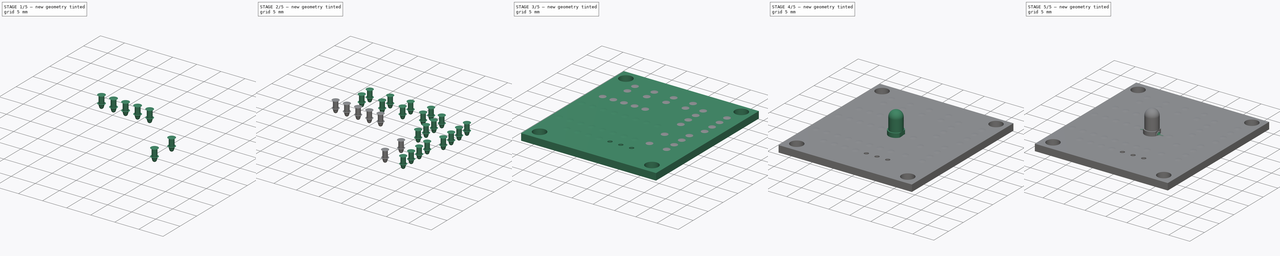
[diagram: build sequence overview — one tinted view per stage of 5, left to right]
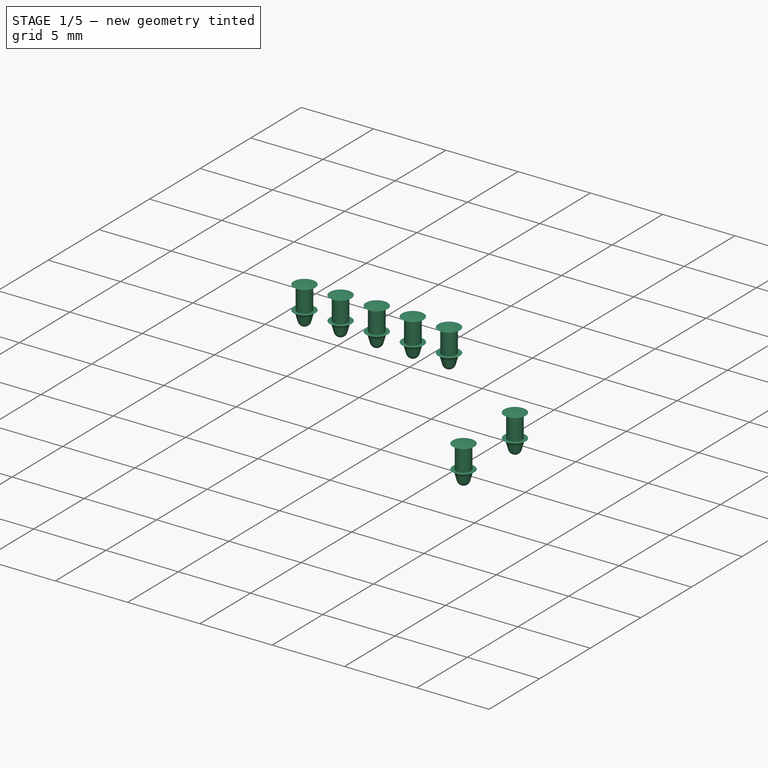
[diagram: stage 1 of 5 — iso view after this stage's code; geometry added in this stage tinted green]
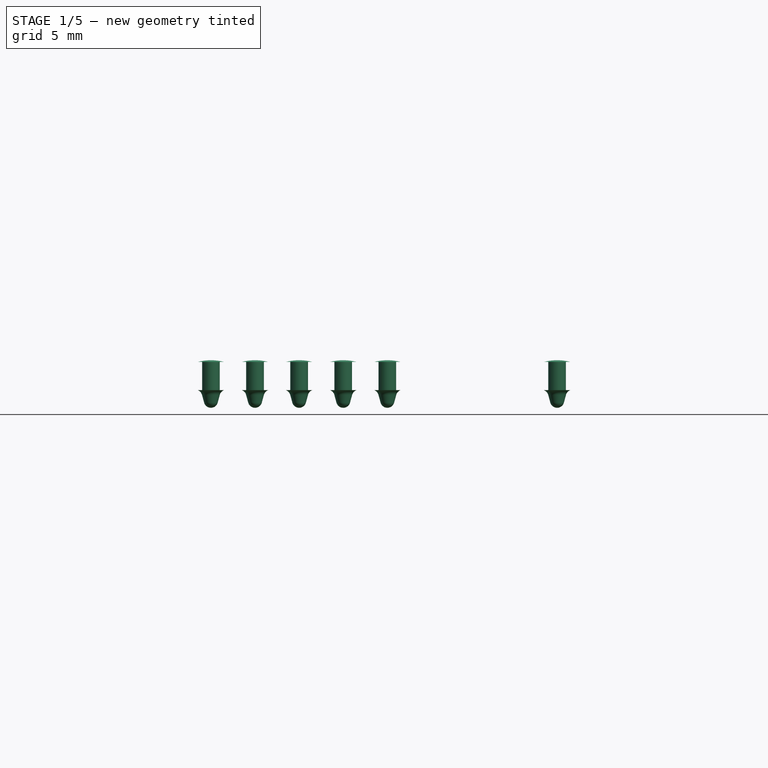
[diagram: stage 1 of 5 — front view after this stage's code; geometry added in this stage tinted green]
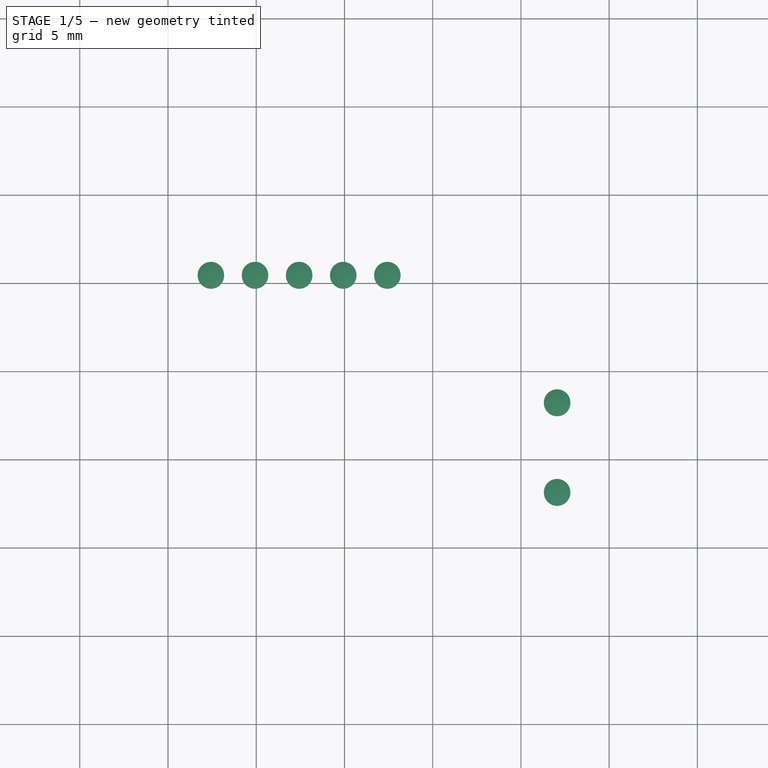
[diagram: stage 1 of 5 — top view after this stage's code; geometry added in this stage tinted green]
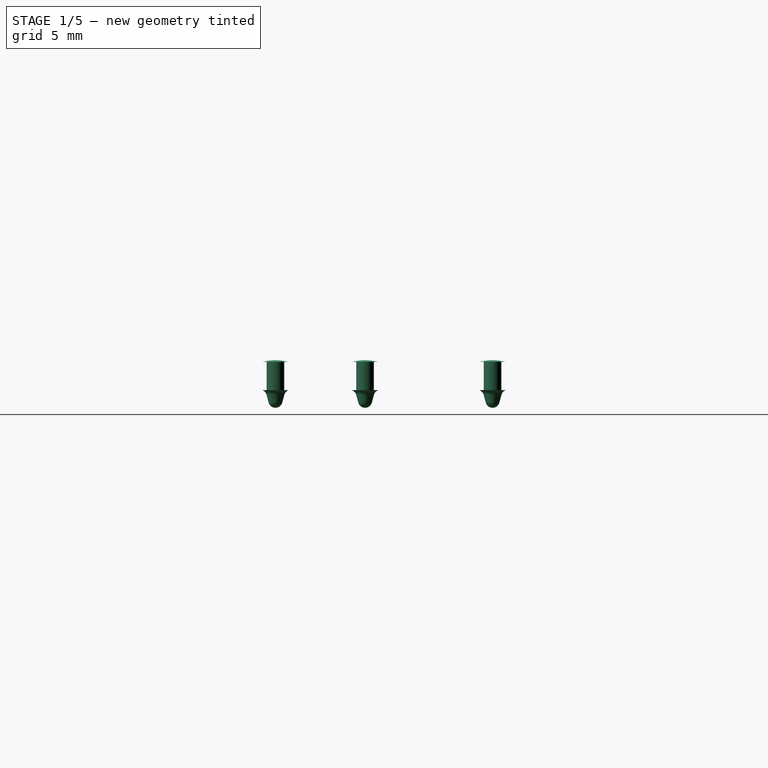
[diagram: stage 1 of 5 — right view after this stage's code; geometry added in this stage tinted green]
FCSTD DOCUMENT  (FreeCAD 0.19R24291 (Git))
Label: ULN2003-driver-board
Comment: FreeCAD-models by mgesteiro -- https://github.com/mgesteiro/FreeCAD-models
License: Creative Commons Attribution-ShareAlike
LicenseURL: http://creativecommons.org/licenses/by-sa/4.0/
objects: Part::Feature×16, Sketcher::SketchObject×10, Part::FeaturePython×7, App::DocumentObjectGroup×4, PartDesign::Body×4, PartDesign::Pad×3, PartDesign::Revolution×3, PartDesign::Pocket×2, Image::ImagePlane×2, PartDesign::AdditivePipe×1
note: 48 computed .brp shape members not serialized (recipe doc carries the construction recipe); baked Part::Feature solids carry a one-line shape summary decoded from their .brp

FEATURE [PartDesign::Body] Body001005  label="Body-R"
  Group = -> [Sketch008,Revolution001,Sketch007,Sketch009,AdditivePipe]
  Origin = -> Origin005
  Tip = -> AdditivePipe
FEATURE [Sketcher::SketchObject] Sketch010  label="Sketch-solder-joint"
  FullyConstrained = true
  MapMode = 5
  Placement = pos=(0,0,0) rot=(1,0,0;1.5708rad)
  Support = -> [XZ_Plane006]
  sketch-geometry (9):
    g0: LineSegment StartX=0.5 StartY=-1.6 StartZ=0 EndX=0.5 EndY=0 EndZ=0
    g1: LineSegment StartX=0.5 StartY=0 StartZ=0 EndX=0.75 EndY=0 EndZ=0
    g2: ArcOfCircle CenterX=0 CenterY=-2.90474 CenterZ=0 NormalX=0 NormalY=0 NormalZ=1 AngleXU=0 Radius=3 StartAngle=1.31812 EndAngle=1.5708
    g3: LineSegment StartX=2e-16 StartY=0.0952625 StartZ=0 EndX=2e-16 EndY=-2.6 EndZ=0
    g4: ArcOfCircle CenterX=0 CenterY=-2.2 CenterZ=0 NormalX=0 NormalY=0 NormalZ=1 AngleXU=0 Radius=0.4 StartAngle=4.71239 EndAngle=6.01871
    g5: LineSegment StartX=0.386092 StartY=-2.30456 StartZ=0 EndX=0.503723 EndY=-1.87021 EndZ=0
    g6: ArcOfCircle CenterX=0.889815 CenterY=-1.97477 CenterZ=0 NormalX=0 NormalY=0 NormalZ=1 AngleXU=0 Radius=0.4 StartAngle=1.92787 EndAngle=2.87712
    g7: LineSegment StartX=0.75 StartY=-1.6 StartZ=0 EndX=0.5 EndY=-1.6 EndZ=0
    g8: LineSegment StartX=0.75 StartY=-1.6 StartZ=0 EndX=0.75 EndY=0 EndZ=0
  constraints (26):
    c: Vertical(g0)
    c: Coincident(g0,g1)
    c: Coincident(g2,g3)
    c: Perpendicular(g3,g4) = 1.5708
    c: Tangent(g4,g5) = -1.5708
    c: Tangent(g5,g6) = 1.5708
    c: Coincident(g6,g7)
    c: Coincident(g7,g0)
    c: Horizontal(g7)
    c: Horizontal(g1)
    c: Perpendicular(g2,g3)
    c: Coincident(g1,g2)
    c: Coincident(g8,g6)
    c: Coincident(g8,g1)
    c: Vertical(g8)
    c: Vertical(g3)
    c: PointOnObject(g2,g-2)
    c: DistanceX(g1) = 0.75
    c: Radius(g4) = 0.4
    c: Equal(g4,g6)
    c: DistanceY(g8,g8) = 1.6
    c: Radius(g2) = 3
    c: DistanceX(g0) = 0.5
    c: DistanceY(g3,g0) = 1
    c: PointOnObject(g0,g-1)
    c: Distance(g5) = 0.45
FEATURE [PartDesign::Revolution] Revolution002  label="Revolution-solder-joint"
  Angle = 360
  Axis = (0,-2e-16,1)
  Base = (0,0,0)
  Placement = pos=(0,0,0) rot=(1,0,0;1.5708rad)
  Profile = -> Sketch010
  ReferenceAxis = -> Sketch010 [V_Axis]
  Reversed = true
FEATURE [Part::FeaturePython] Array005  label="Array-solder-jst"  # Draft array (typed FeaturePython)
  Angle = 360
  ArrayType = 0
  Axis = (0,0,1)
  Base = -> Revolution002
  Center = (0,0,0)
  Count = 5
  ExpandArray = false
  Fuse = false
  IntervalAxis = (0,0,0)
  IntervalX = (2.5,0,0)
  IntervalY = (0,100,0)
  IntervalZ = (0,0,100)
  NumberCircles = 3
  NumberPolar = 5
  NumberX = 5
  NumberY = 1
  NumberZ = 1
  Placement = pos=(-12.57,5.425,0) rot=(0,0,1;0rad)
  PlacementList = 5 placements: arithmetic series from (0,0,0) step (2.5,0,0) to (10,0,0)
  RadialDistance = 50
  ScaleList = (5) [(1,1,1),(1,1,1),(1,1,1),(1,1,1),(1,1,1)]
  Symmetry = 1
  TangentialDistance = 25
FEATURE [Part::FeaturePython] Array006  label="Array-solder-c"  # Draft array (typed FeaturePython)
  Angle = 360
  ArrayType = 0
  Axis = (0,0,1)
  Base = -> Revolution002
  Center = (0,0,0)
  Count = 2
  ExpandArray = false
  Fuse = false
  IntervalAxis = (0,0,0)
  IntervalX = (100,0,0)
  IntervalY = (0,5.08,0)
  IntervalZ = (0,0,100)
  NumberCircles = 3
  NumberPolar = 5
  NumberX = 1
  NumberY = 2
  NumberZ = 1
  Placement = pos=(7.05,-6.88,0) rot=(0,0,1;0rad)
  PlacementList = 2 placements: [(0,0,0),(0,5.08,0)]
  RadialDistance = 50
  ScaleList = (2) [(1,1,1),(1,1,1)]
  Symmetry = 1
  TangentialDistance = 25
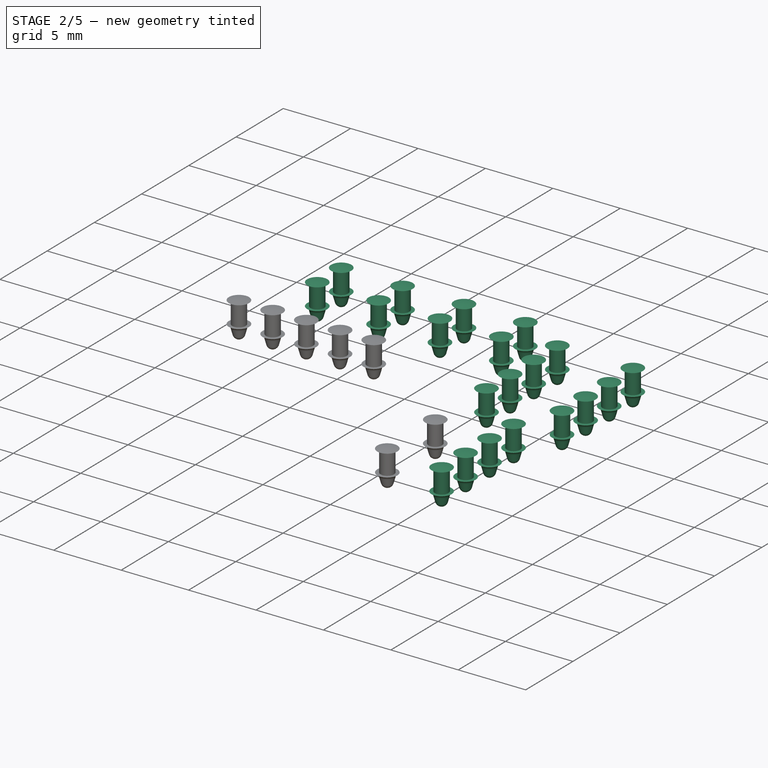
[diagram: stage 2 of 5 — iso view after this stage's code; geometry added in this stage tinted green]
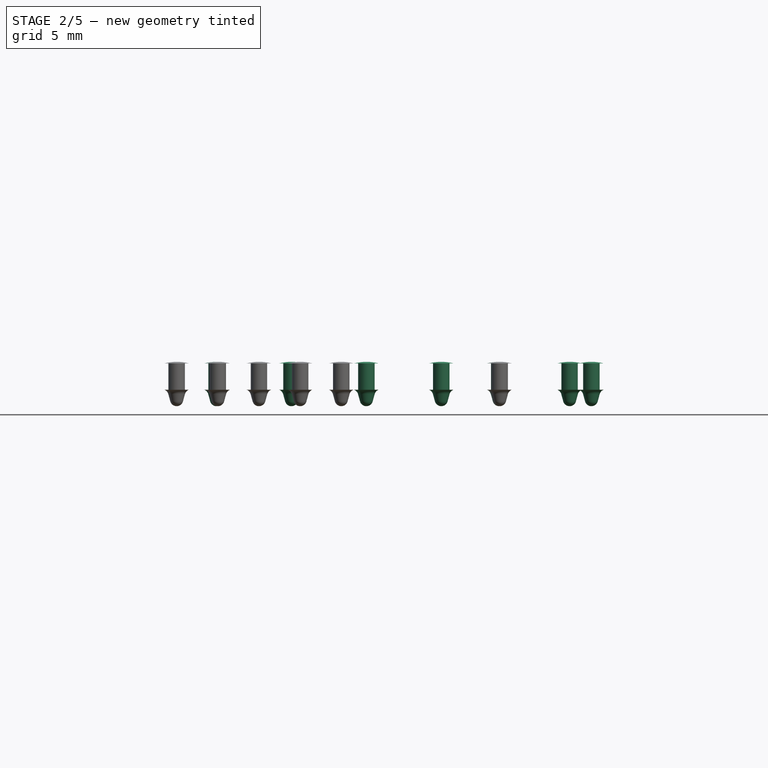
[diagram: stage 2 of 5 — front view after this stage's code; geometry added in this stage tinted green]
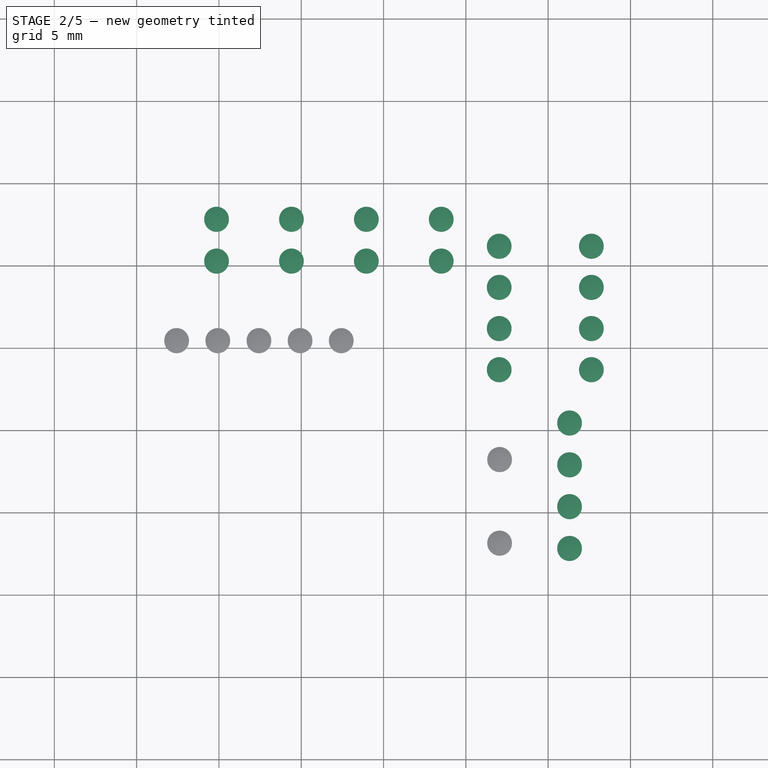
[diagram: stage 2 of 5 — top view after this stage's code; geometry added in this stage tinted green]
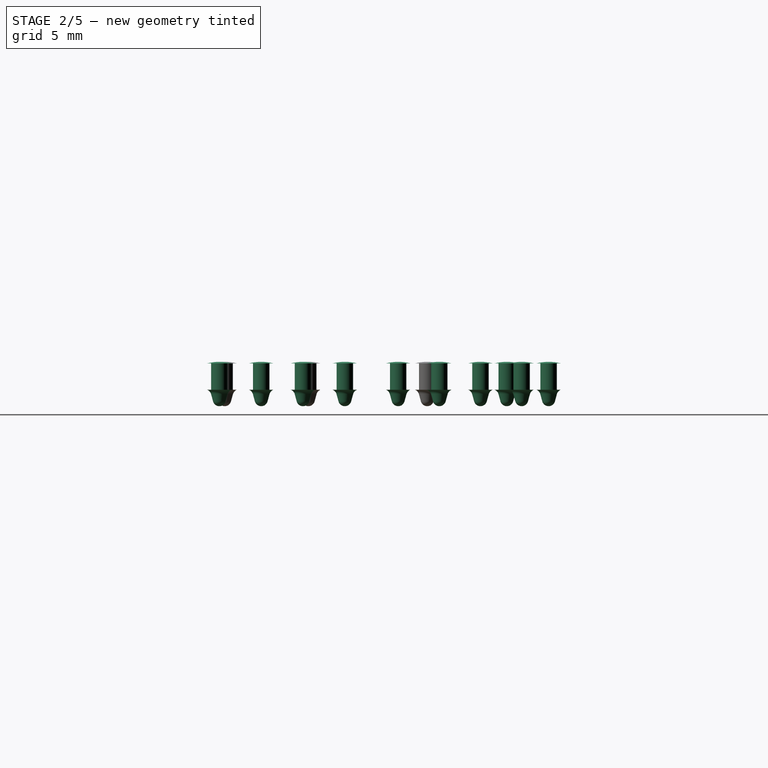
[diagram: stage 2 of 5 — right view after this stage's code; geometry added in this stage tinted green]
FEATURE [Part::FeaturePython] Array002  label="Array-solder-Rs"  # Draft array (typed FeaturePython)
  Angle = 360
  ArrayType = 0
  Axis = (0,0,1)
  Base = -> Revolution002
  Center = (0,0,0)
  Count = 8
  ExpandArray = false
  Fuse = false
  IntervalAxis = (0,0,0)
  IntervalX = (5.6,0,0)
  IntervalY = (0,2.5,0)
  IntervalZ = (0,0,100)
  NumberCircles = 3
  NumberPolar = 5
  NumberX = 2
  NumberY = 4
  NumberZ = 1
  Placement = pos=(7.025,3.66,0) rot=(0,0,1;0rad)
  PlacementList = 8 placements: [(0,0,0),(0,2.5,0),(0,5,0),(0,7.5,0),(5.6,0,0),(5.6,2.5,0),(5.6,5,0),(5.6,7.5,0)]
  RadialDistance = 50
  ScaleList = (8) [(1,1,1),(1,1,1),(1,1,1),(1,1,1),(1,1,1),(1,1,1),(1,1,1),(1,1,1)]
  Symmetry = 1
  TangentialDistance = 25
FEATURE [Part::FeaturePython] Array003  label="Array-solder-leds"  # Draft array (typed FeaturePython)
  Angle = 360
  ArrayType = 0
  Axis = (0,0,1)
  Base = -> Revolution002
  Center = (0,0,0)
  Count = 8
  ExpandArray = false
  Fuse = false
  IntervalAxis = (0,0,0)
  IntervalX = (4.55,0,0)
  IntervalY = (0,2.54,0)
  IntervalZ = (0,0,100)
  NumberCircles = 3
  NumberPolar = 5
  NumberX = 4
  NumberY = 2
  NumberZ = 1
  Placement = pos=(-10.145,10.258,0) rot=(0,0,1;0rad)
  PlacementList = 8 placements: [(0,0,0),(0,2.54,0),(4.55,0,0),(4.55,2.54,0),(9.1,0,0),(9.1,2.54,0),(13.65,0,0),(13.65,2.54,0)]
  RadialDistance = 50
  ScaleList = (8) [(1,1,1),(1,1,1),(1,1,1),(1,1,1),(1,1,1),(1,1,1),(1,1,1),(1,1,1)]
  Symmetry = 1
  TangentialDistance = 25
FEATURE [Part::FeaturePython] Array004  label="Array-solder-pins-v"  # Draft array (typed FeaturePython)
  Angle = 360
  ArrayType = 0
  Axis = (0,0,1)
  Base = -> Revolution002
  Center = (0,0,0)
  Count = 4
  ExpandArray = false
  Fuse = false
  IntervalAxis = (0,0,0)
  IntervalX = (100,0,0)
  IntervalY = (0,2.54,0)
  IntervalZ = (0,0,100)
  NumberCircles = 3
  NumberPolar = 5
  NumberX = 1
  NumberY = 4
  NumberZ = 1
  Placement = pos=(11.3,-7.2,0) rot=(0,0,1;0rad)
  PlacementList = 4 placements: arithmetic series from (0,0,0) step (0,2.54,0) to (0,7.62,0)
  RadialDistance = 50
  ScaleList = (4) [(1,1,1),(1,1,1),(1,1,1),(1,1,1)]
  Symmetry = 1
  TangentialDistance = 25
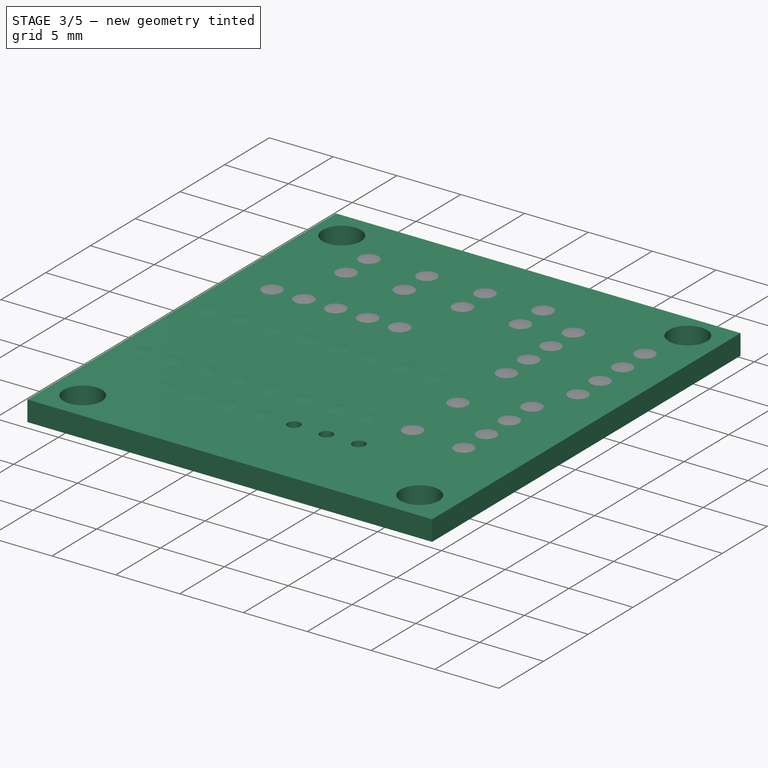
[diagram: stage 3 of 5 — iso view after this stage's code; geometry added in this stage tinted green]
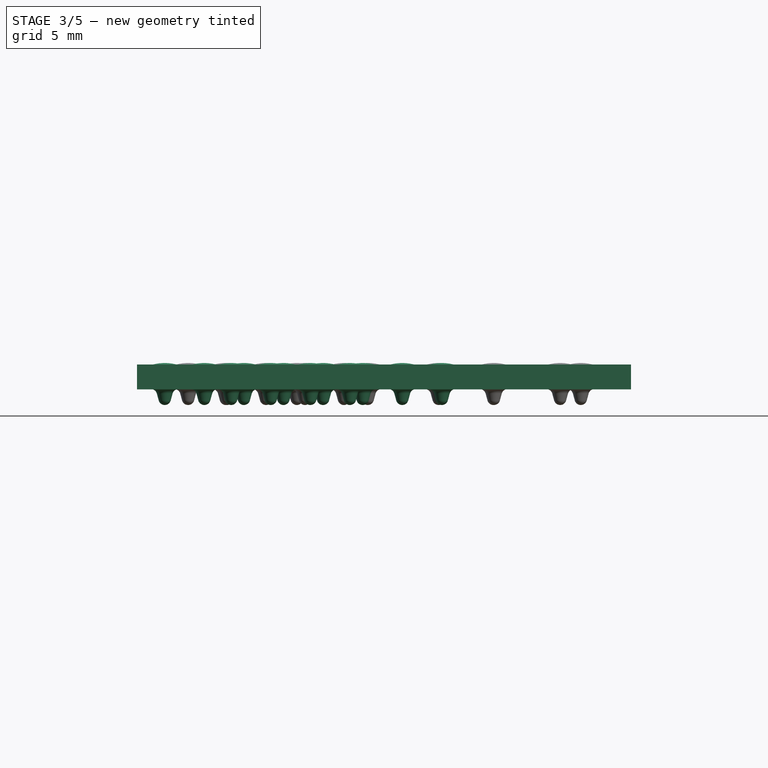
[diagram: stage 3 of 5 — front view after this stage's code; geometry added in this stage tinted green]
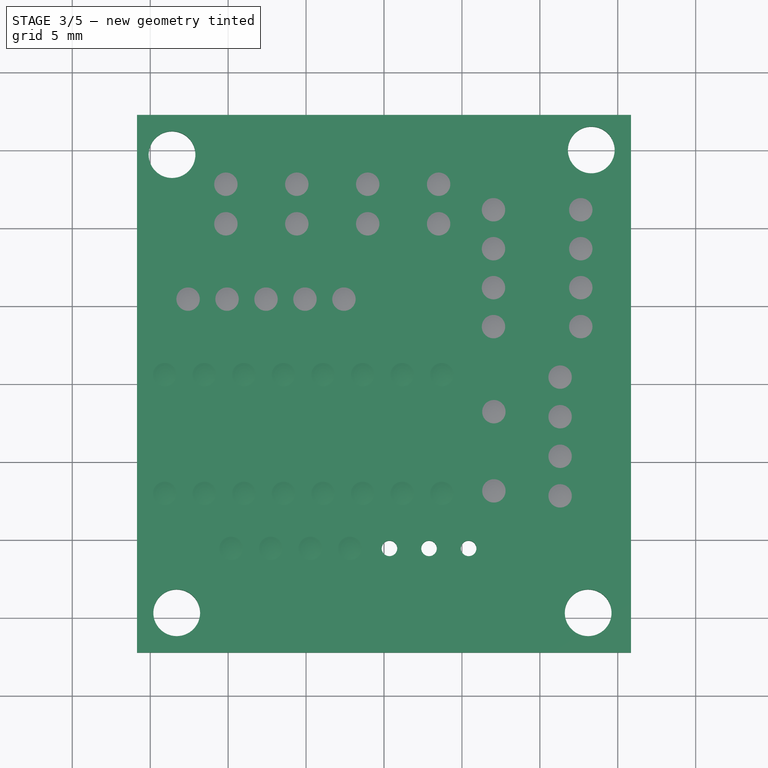
[diagram: stage 3 of 5 — top view after this stage's code; geometry added in this stage tinted green]
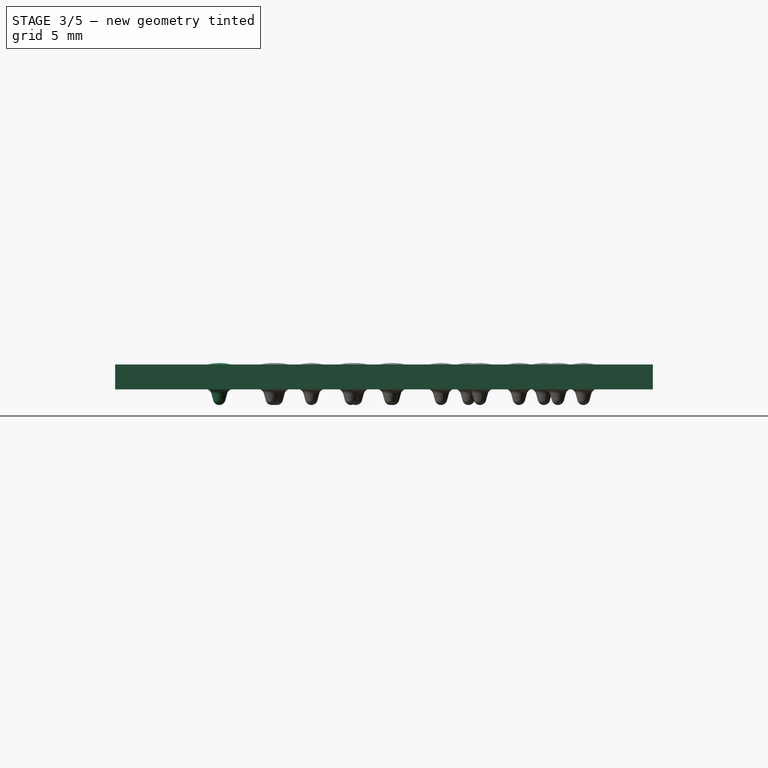
[diagram: stage 3 of 5 — right view after this stage's code; geometry added in this stage tinted green]
FEATURE [Sketcher::SketchObject] Sketch  label="Sketch-pcb"
  FullyConstrained = true
  MapMode = 5
  Support = -> [XY_Plane]
  sketch-geometry (8):
    g0: LineSegment StartX=-15.85 StartY=17.25 StartZ=0 EndX=15.85 EndY=17.25 EndZ=0
    g1: LineSegment StartX=15.85 StartY=17.25 StartZ=0 EndX=15.85 EndY=-17.25 EndZ=0
    g2: LineSegment StartX=15.85 StartY=-17.25 StartZ=0 EndX=-15.85 EndY=-17.25 EndZ=0
    g3: LineSegment StartX=-15.85 StartY=-17.25 StartZ=0 EndX=-15.85 EndY=17.25 EndZ=0
    g4: Circle CenterX=13.1 CenterY=-14.7 CenterZ=0 NormalX=0 NormalY=0 NormalZ=1 AngleXU=0 Radius=1.5
    g5: Circle CenterX=-13.3 CenterY=-14.7 CenterZ=0 NormalX=0 NormalY=0 NormalZ=1 AngleXU=0 Radius=1.5
    g6: Circle CenterX=-13.6 CenterY=14.7 CenterZ=0 NormalX=0 NormalY=0 NormalZ=1 AngleXU=0 Radius=1.5
    g7: Circle CenterX=13.3 CenterY=15 CenterZ=0 NormalX=0 NormalY=0 NormalZ=1 AngleXU=0 Radius=1.5
  constraints (23):
    c: Coincident(g0,g1)
    c: Coincident(g2,g3)
    c: Coincident(g3,g0)
    c: Vertical(g1)
    c: Vertical(g3)
    c: DistanceX(g0,g0) = 31.7
    c: DistanceY(g1,g1) = 34.5
    c: Radius(g4) = 1.5
    c: Equal(g6,g7)
    c: Equal(g7,g5)
    c: Equal(g5,g4)
    c: Horizontal(g0)
    c: Coincident(g1,g2)
    c: Horizontal(g2)
    c: Symmetric(g0,g1,g-1)
    c: DistanceX(g2,g5) = 2.55
    c: DistanceY(g2,g5) = 2.55
    c: DistanceY(g1,g4) = 2.55
    c: DistanceX(g4,g1) = 2.75
    c: DistanceX(g7,g0) = 2.55
    c: DistanceY(g7,g0) = 2.25
    c: DistanceX(g0,g6) = 2.25
    c: DistanceY(g6,g0) = 2.55
FEATURE [PartDesign::Pad] Pad  label="Pad-pcb"
  Direction = (1,1,1)
  Length = 1.6
  Length2 = 100
  Profile = -> Sketch
  Reversed = true
  Type = 0
FEATURE [Sketcher::SketchObject] Sketch001  label="Sketch-holes-pcb"
  FullyConstrained = false
  MapMode = 5
  Support = -> [XY_Plane]
  sketch-geometry (93):
    g0: Circle CenterX=-12.5648 CenterY=5.42053 CenterZ=0 NormalX=0 NormalY=0 NormalZ=1 AngleXU=0 Radius=0.5
    g1: Circle CenterX=-10.0648 CenterY=5.42053 CenterZ=0 NormalX=0 NormalY=0 NormalZ=1 AngleXU=0 Radius=0.5
    g2: Circle CenterX=-7.56483 CenterY=5.42053 CenterZ=0 NormalX=0 NormalY=0 NormalZ=1 AngleXU=0 Radius=0.5
    g3: Circle CenterX=-5.06483 CenterY=5.42053 CenterZ=0 NormalX=0 NormalY=0 NormalZ=1 AngleXU=0 Radius=0.5
    g4: Circle CenterX=-2.56483 CenterY=5.42053 CenterZ=0 NormalX=0 NormalY=0 NormalZ=1 AngleXU=0 Radius=0.5
    g5: Circle CenterX=-10.1428 CenterY=10.2599 CenterZ=0 NormalX=0 NormalY=0 NormalZ=1 AngleXU=0 Radius=0.5
    g6: Circle CenterX=-10.1428 CenterY=12.7999 CenterZ=0 NormalX=0 NormalY=0 NormalZ=1 AngleXU=0 Radius=0.5
    g7: LineSegment StartX=-10.1428 StartY=10.2599 StartZ=0 EndX=-10.1428 EndY=12.7999 EndZ=0
    g8: LineSegment StartX=-12.5648 StartY=5.42053 StartZ=0 EndX=-10.0648 EndY=5.42053 EndZ=0
    g9: LineSegment StartX=-10.0648 StartY=5.42053 StartZ=0 EndX=-7.56483 EndY=5.42053 EndZ=0
    g10: LineSegment StartX=-7.56483 StartY=5.42053 StartZ=0 EndX=-5.06483 EndY=5.42053 EndZ=0
    g11: LineSegment StartX=-5.06483 StartY=5.42053 StartZ=0 EndX=-2.56483 EndY=5.42053 EndZ=0
    g12: LineSegment StartX=-10.1428 StartY=10.2599 StartZ=0 EndX=-5.59283 EndY=10.2599 EndZ=0
    g13: LineSegment StartX=-5.59283 StartY=10.2599 StartZ=0 EndX=-5.59283 EndY=12.7999 EndZ=0
    g14: LineSegment StartX=-5.59283 StartY=10.2599 StartZ=0 EndX=-1.04283 EndY=10.2599 EndZ=0
    g15: LineSegment StartX=-1.04283 StartY=10.2599 StartZ=0 EndX=-1.04283 EndY=12.7999 EndZ=0
    g16: LineSegment StartX=-1.04283 StartY=10.2599 StartZ=0 EndX=3.50717 EndY=10.2599 EndZ=0
    g17: LineSegment StartX=3.50717 StartY=10.2599 StartZ=0 EndX=3.50717 EndY=12.7999 EndZ=0
    g18: Circle CenterX=-5.59283 CenterY=12.7999 CenterZ=0 NormalX=0 NormalY=0 NormalZ=1 AngleXU=0 Radius=0.5
    g19: Circle CenterX=-5.59283 CenterY=10.2599 CenterZ=0 NormalX=0 NormalY=0 NormalZ=1 AngleXU=0 Radius=0.5
    g20: Circle CenterX=-1.04283 CenterY=10.2599 CenterZ=0 NormalX=0 NormalY=0 NormalZ=1 AngleXU=0 Radius=0.5
    g21: Circle CenterX=-1.04283 CenterY=12.7999 CenterZ=0 NormalX=0 NormalY=0 NormalZ=1 AngleXU=0 Radius=0.5
    g22: Circle CenterX=3.50717 CenterY=12.7999 CenterZ=0 NormalX=0 NormalY=0 NormalZ=1 AngleXU=0 Radius=0.5
    g23: Circle CenterX=3.50717 CenterY=10.2599 CenterZ=0 NormalX=0 NormalY=0 NormalZ=1 AngleXU=0 Radius=0.5
    g24: Circle CenterX=7.02339 CenterY=11.1613 CenterZ=0 NormalX=0 NormalY=0 NormalZ=1 AngleXU=0 Radius=0.5
    g25: Circle CenterX=12.6234 CenterY=11.1613 CenterZ=0 NormalX=0 NormalY=0 NormalZ=1 AngleXU=0 Radius=0.5
    g26: LineSegment StartX=7.02339 StartY=11.1613 StartZ=0 EndX=12.6234 EndY=11.1613 EndZ=0
    g27: LineSegment StartX=7.02339 StartY=11.1613 StartZ=0 EndX=7.02339 EndY=8.66128 EndZ=0
    g28: Circle CenterX=7.02339 CenterY=8.66128 CenterZ=0 NormalX=0 NormalY=0 NormalZ=1 AngleXU=0 Radius=0.5
    g29: Circle CenterX=12.6234 CenterY=8.66128 CenterZ=0 NormalX=0 NormalY=0 NormalZ=1 AngleXU=0 Radius=0.5
    g30: LineSegment StartX=7.02339 StartY=8.66128 StartZ=0 EndX=12.6234 EndY=8.66128 EndZ=0
    g31: LineSegment StartX=7.02339 StartY=8.66128 StartZ=0 EndX=7.02339 EndY=6.16128 EndZ=0
    g32: LineSegment StartX=7.02339 StartY=6.16128 StartZ=0 EndX=7.02339 EndY=3.66128 EndZ=0
    g33: Circle CenterX=7.02339 CenterY=6.16128 CenterZ=0 NormalX=0 NormalY=0 NormalZ=1 AngleXU=0 Radius=0.5
    g34: LineSegment StartX=7.02339 StartY=6.16128 StartZ=0 EndX=12.6234 EndY=6.16128 EndZ=0
    g35: Circle CenterX=12.6234 CenterY=6.16128 CenterZ=0 NormalX=0 NormalY=0 NormalZ=1 AngleXU=0 Radius=0.5
    g36: Circle CenterX=12.6234 CenterY=3.66128 CenterZ=0 NormalX=0 NormalY=0 NormalZ=1 AngleXU=0 Radius=0.5
    g37: LineSegment StartX=7.02339 StartY=3.66128 StartZ=0 EndX=12.6234 EndY=3.66128 EndZ=0
    g38: Circle CenterX=7.02339 CenterY=3.66128 CenterZ=0 NormalX=0 NormalY=0 NormalZ=1 AngleXU=0 Radius=0.5
    g39: Circle CenterX=-9.81019 CenterY=-10.5669 CenterZ=0 NormalX=0 NormalY=0 NormalZ=1 AngleXU=0 Radius=0.5
    g40: Circle CenterX=-7.27019 CenterY=-10.5669 CenterZ=0 NormalX=0 NormalY=0 NormalZ=1 AngleXU=0 Radius=0.5
    g41: Circle CenterX=-4.73019 CenterY=-10.5669 CenterZ=0 NormalX=0 NormalY=0 NormalZ=1 AngleXU=0 Radius=0.5
    g42: Circle CenterX=-2.19019 CenterY=-10.5669 CenterZ=0 NormalX=0 NormalY=0 NormalZ=1 AngleXU=0 Radius=0.5
    g43: LineSegment StartX=-9.81019 StartY=-10.5669 StartZ=0 EndX=-7.27019 EndY=-10.5669 EndZ=0
    g44: LineSegment StartX=-7.27019 StartY=-10.5669 StartZ=0 EndX=-4.73019 EndY=-10.5669 EndZ=0
    g45: LineSegment StartX=-4.73019 StartY=-10.5669 StartZ=0 EndX=-2.19019 EndY=-10.5669 EndZ=0
    g46: Circle CenterX=-14.0682 CenterY=0.58561 CenterZ=0 NormalX=0 NormalY=0 NormalZ=1 AngleXU=0 Radius=0.5
    g47: Circle CenterX=-11.5282 CenterY=0.58561 CenterZ=0 NormalX=0 NormalY=0 NormalZ=1 AngleXU=0 Radius=0.5
    g48: Circle CenterX=-8.98818 CenterY=0.58561 CenterZ=0 NormalX=0 NormalY=0 NormalZ=1 AngleXU=0 Radius=0.5
    g49: Circle CenterX=-6.44818 CenterY=0.58561 CenterZ=0 NormalX=0 NormalY=0 NormalZ=1 AngleXU=0 Radius=0.5
    g50: LineSegment StartX=-14.0682 StartY=0.58561 StartZ=0 EndX=-11.5282 EndY=0.58561 EndZ=0
    g51: LineSegment StartX=-11.5282 StartY=0.58561 StartZ=0 EndX=-8.98818 EndY=0.58561 EndZ=0
    g52: LineSegment StartX=-8.98818 StartY=0.58561 StartZ=0 EndX=-6.44818 EndY=0.58561 EndZ=0
    g53: Circle CenterX=-3.90818 CenterY=0.58561 CenterZ=0 NormalX=0 NormalY=0 NormalZ=1 AngleXU=0 Radius=0.5
    g54: Circle CenterX=-1.36818 CenterY=0.58561 CenterZ=0 NormalX=0 NormalY=0 NormalZ=1 AngleXU=0 Radius=0.5
    g55: Circle CenterX=1.17182 CenterY=0.58561 CenterZ=0 NormalX=0 NormalY=0 NormalZ=1 AngleXU=0 Radius=0.5
    g56: Circle CenterX=3.71182 CenterY=0.58561 CenterZ=0 NormalX=0 NormalY=0 NormalZ=1 AngleXU=0 Radius=0.5
    g57: LineSegment StartX=-3.90818 StartY=0.58561 StartZ=0 EndX=-1.36818 EndY=0.58561 EndZ=0
    g58: LineSegment StartX=-1.36818 StartY=0.58561 StartZ=0 EndX=1.17182 EndY=0.58561 EndZ=0
    g59: LineSegment StartX=1.17182 StartY=0.58561 StartZ=0 EndX=3.71182 EndY=0.58561 EndZ=0
    g60: LineSegment StartX=-6.44818 StartY=0.58561 StartZ=0 EndX=-3.90818 EndY=0.58561 EndZ=0
    g61: Circle CenterX=-14.0682 CenterY=-7.03439 CenterZ=0 NormalX=0 NormalY=0 NormalZ=1 AngleXU=0 Radius=0.5
    g62: Circle CenterX=-11.5282 CenterY=-7.03439 CenterZ=0 NormalX=0 NormalY=0 NormalZ=1 AngleXU=0 Radius=0.5
    g63: Circle CenterX=-8.98818 CenterY=-7.03439 CenterZ=0 NormalX=0 NormalY=0 NormalZ=1 AngleXU=0 Radius=0.5
    g64: Circle CenterX=-6.44818 CenterY=-7.03439 CenterZ=0 NormalX=0 NormalY=0 NormalZ=1 AngleXU=0 Radius=0.5
    g65: LineSegment StartX=-14.0682 StartY=-7.03439 StartZ=0 EndX=-11.5282 EndY=-7.03439 EndZ=0
    g66: LineSegment StartX=-11.5282 StartY=-7.03439 StartZ=0 EndX=-8.98818 EndY=-7.03439 EndZ=0
    g67: LineSegment StartX=-8.98818 StartY=-7.03439 StartZ=0 EndX=-6.44818 EndY=-7.03439 EndZ=0
    g68: Circle CenterX=-3.90818 CenterY=-7.03439 CenterZ=0 NormalX=0 NormalY=0 NormalZ=1 AngleXU=0 Radius=0.5
    g69: Circle CenterX=-1.36818 CenterY=-7.03439 CenterZ=0 NormalX=0 NormalY=0 NormalZ=1 AngleXU=0 Radius=0.5
    g70: Circle CenterX=1.17182 CenterY=-7.03439 CenterZ=0 NormalX=0 NormalY=0 NormalZ=1 AngleXU=0 Radius=0.5
    g71: Circle CenterX=3.71182 CenterY=-7.03439 CenterZ=0 NormalX=0 NormalY=0 NormalZ=1 AngleXU=0 Radius=0.5
    g72: LineSegment StartX=-3.90818 StartY=-7.03439 StartZ=0 EndX=-1.36818 EndY=-7.03439 EndZ=0
    g73: LineSegment StartX=-1.36818 StartY=-7.03439 StartZ=0 EndX=1.17182 EndY=-7.03439 EndZ=0
    g74: LineSegment StartX=1.17182 StartY=-7.03439 StartZ=0 EndX=3.71182 EndY=-7.03439 EndZ=0
    g75: LineSegment StartX=-6.44818 StartY=-7.03439 StartZ=0 EndX=-3.90818 EndY=-7.03439 EndZ=0
    g76: LineSegment StartX=-14.0682 StartY=0.58561 StartZ=0 EndX=-14.0682 EndY=-7.03439 EndZ=0
    g77: Circle CenterX=11.297 CenterY=0.417566 CenterZ=0 NormalX=0 NormalY=0 NormalZ=1 AngleXU=0 Radius=0.5
    g78: LineSegment StartX=11.297 StartY=0.417566 StartZ=0 EndX=11.297 EndY=-2.12243 EndZ=0
    g79: Circle CenterX=11.297 CenterY=-2.12243 CenterZ=0 NormalX=0 NormalY=0 NormalZ=1 AngleXU=0 Radius=0.5
    g80: LineSegment StartX=11.297 StartY=-2.12243 StartZ=0 EndX=11.297 EndY=-4.66243 EndZ=0
    g81: Circle CenterX=11.297 CenterY=-4.66243 CenterZ=0 NormalX=0 NormalY=0 NormalZ=1 AngleXU=0 Radius=0.5
    g82: LineSegment StartX=11.297 StartY=-4.66243 StartZ=0 EndX=11.297 EndY=-7.20243 EndZ=0
    g83: Circle CenterX=11.297 CenterY=-7.20243 CenterZ=0 NormalX=0 NormalY=0 NormalZ=1 AngleXU=0 Radius=0.5
    g84: Circle CenterX=7.05536 CenterY=-1.80261 CenterZ=0 NormalX=0 NormalY=0 NormalZ=1 AngleXU=0 Radius=0.5
    g85: LineSegment StartX=7.05536 StartY=-1.80261 StartZ=0 EndX=7.05536 EndY=-6.8826 EndZ=0
    g86: Circle CenterX=7.05536 CenterY=-6.8826 CenterZ=0 NormalX=0 NormalY=0 NormalZ=1 AngleXU=0 Radius=0.5
    g87: Circle CenterX=0.349807 CenterY=-10.5669 CenterZ=0 NormalX=0 NormalY=0 NormalZ=1 AngleXU=0 Radius=0.5
    g88: LineSegment StartX=-2.19019 StartY=-10.5669 StartZ=0 EndX=0.349807 EndY=-10.5669 EndZ=0
    g89: Circle CenterX=2.88981 CenterY=-10.5669 CenterZ=0 NormalX=0 NormalY=0 NormalZ=1 AngleXU=0 Radius=0.5
    g90: LineSegment StartX=2.88981 StartY=-10.5669 StartZ=0 EndX=5.42981 EndY=-10.5669 EndZ=0
    g91: Circle CenterX=5.42981 CenterY=-10.5669 CenterZ=0 NormalX=0 NormalY=0 NormalZ=1 AngleXU=0 Radius=0.5
    g92: LineSegment StartX=0.349807 StartY=-10.5669 StartZ=0 EndX=2.88981 EndY=-10.5669 EndZ=0
  constraints (217):
    c: Coincident(g7,g5)
    c: Coincident(g7,g6)
    c: Vertical(g7)
    c: Coincident(g8,g0)
    c: Coincident(g8,g1)
    c: Coincident(g9,g1)
    c: Coincident(g9,g2)
    c: Horizontal(g9)
    c: Coincident(g10,g2)
    c: Coincident(g10,g3)
    c: Coincident(g11,g3)
    c: Coincident(g11,g4)
    c: Horizontal(g11)
    c: Horizontal(g10)
    c: Horizontal(g8)
    c: Equal(g11,g10)
    c: Equal(g10,g9)
    c: Equal(g9,g8)
    c: DistanceX(g8,g8) = 2.5
    c: Equal(g0,g1)
    c: Equal(g1,g2)
    c: Equal(g2,g3)
    c: Equal(g3,g4)
    c: Equal(g4,g5)
    c: Equal(g5,g6)
    c: Radius(g0) = 0.5
    c: DistanceY(g7,g7) = 2.54
    c: Coincident(g12,g5)
    c: Horizontal(g12)
    c: DistanceX(g12,g12) = 4.55
    c: Coincident(g13,g12)
    c: Vertical(g13)
    c: Coincident(g14,g12)
    c: Horizontal(g14)
    c: Coincident(g15,g14)
    c: Vertical(g15)
    c: Coincident(g16,g14)
    c: Horizontal(g16)
    c: Coincident(g17,g16)
    c: Vertical(g17)
    c: Equal(g12,g14)
    c: Equal(g14,g16)
    c: Equal(g13,g15)
    c: Equal(g15,g17)
    c: Coincident(g18,g13)
    c: Coincident(g19,g12)
    c: Coincident(g20,g14)
    c: Coincident(g21,g15)
    c: Coincident(g22,g17)
    c: Coincident(g23,g16)
    c: Equal(g19,g18)
    c: Equal(g18,g20)
    c: Equal(g20,g21)
    c: Equal(g21,g22)
    c: Equal(g22,g23)
    c: Equal(g23,g5)
    c: Coincident(g26,g24)
    c: Coincident(g26,g25)
    c: Horizontal(g26)
    c: DistanceX(g26,g26) = 5.6
    c: Equal(g24,g25)
    c: Equal(g24,g0)
    c: Coincident(g27,g24)
    c: Vertical(g27)
    c: DistanceY(g27,g27) = 2.5
    c: Coincident(g30,g28)
    c: Coincident(g30,g29)
    c: Horizontal(g30)
    c: Equal(g28,g29)
    c: Coincident(g31,g28)
    c: Vertical(g31)
    c: Coincident(g31,g27)
    c: Coincident(g34,g33)
    c: Coincident(g34,g35)
    c: Horizontal(g34)
    c: Equal(g33,g35)
    c: Coincident(g32,g33)
    c: Vertical(g32)
    c: Coincident(g37,g38)
    c: Coincident(g37,g36)
    c: Horizontal(g37)
    c: Equal(g38,g36)
    c: Coincident(g38,g32)
    c: Coincident(g31,g32)
    c: Equal(g31,g27)
    c: Equal(g27,g32)
    c: Equal(g26,g30)
    c: Equal(g30,g34)
    c: Equal(g34,g37)
    c: Coincident(g43,g39)
    c: Coincident(g43,g40)
    c: Coincident(g44,g40)
    c: Coincident(g44,g41)
    c: Coincident(g45,g41)
    c: Coincident(g45,g42)
    c: Horizontal(g45)
    c: Horizontal(g43)
    c: DistanceX(g43,g43) = 2.54
    c: Equal(g39,g40)
    c: Equal(g40,g41)
    c: Equal(g41,g42)
    c: Radius(g39) = 0.5
    c: Coincident(g50,g46)
    c: Coincident(g50,g47)
    c: Coincident(g51,g47)
    c: Coincident(g51,g48)
    c: Horizontal(g51)
    c: Coincident(g52,g48)
    c: Coincident(g52,g49)
    c: Horizontal(g52)
    c: Horizontal(g50)
    c: DistanceX(g50,g50) = 2.54
    c: Equal(g46,g47)
    c: Equal(g47,g48)
    c: Equal(g48,g49)
    c: Radius(g46) = 0.5
    c: Coincident(g57,g53)
    c: Coincident(g57,g54)
    c: Coincident(g58,g54)
    c: Coincident(g58,g55)
    c: Horizontal(g58)
    c: Coincident(g59,g55)
    c: Coincident(g59,g56)
    c: Horizontal(g59)
    c: Horizontal(g57)
    c: Equal(g53,g54)
    c: Equal(g54,g55)
    c: Equal(g55,g56)
    c: Coincident(g60,g49)
    c: Coincident(g60,g53)
    c: Horizontal(g60)
    c: Equal(g53,g46)
    c: Coincident(g65,g61)
    c: Coincident(g65,g62)
    c: Coincident(g66,g62)
    c: Coincident(g66,g63)
    c: Horizontal(g66)
    c: Coincident(g67,g63)
    c: Coincident(g67,g64)
    c: Horizontal(g67)
    c: Horizontal(g65)
    c: DistanceX(g65,g65) = 2.54
    c: Equal(g61,g62)
    c: Equal(g62,g63)
    c: Equal(g63,g64)
    c: Radius(g61) = 0.5
    c: Coincident(g72,g68)
    c: Coincident(g72,g69)
    c: Coincident(g73,g69)
    c: Coincident(g73,g70)
    c: Horizontal(g73)
    c: Coincident(g74,g70)
    c: Coincident(g74,g71)
    c: Horizontal(g74)
    c: Horizontal(g72)
    c: Equal(g68,g69)
    c: Equal(g69,g70)
    c: Equal(g70,g71)
    c: Coincident(g75,g64)
    c: Coincident(g75,g68)
    c: Horizontal(g75)
    c: Equal(g68,g61)
    c: Coincident(g76,g46)
    c: Coincident(g76,g61)
    c: Vertical(g76)
    c: DistanceY(g76,g76) = 7.62
    c: Coincident(g78,g77)
    c: Vertical(g78)
    c: Coincident(g80,g79)
    c: Vertical(g80)
    c: Coincident(g80,g78)
    c: Equal(g0,g77)
    c: Equal(g79,g0)
    c: Equal(g78,g80)
    c: Coincident(g82,g81)
    c: Vertical(g82)
    c: Equal(g79,g81)
    c: Equal(g81,g83)
    c: Coincident(g81,g80)
    c: Coincident(g83,g82)
    c: Equal(g82,g80)
    c: DistanceY(g78,g78) = 2.54
    c: Coincident(g85,g84)
    c: Vertical(g85)
    c: Equal(g84,g86)
    c: Coincident(g86,g85)
    c: DistanceY(g85,g85) = 5.08
    c: Equal(g7,g13)
    c: Coincident(g88,g87)
    c: Horizontal(g88)
    c: Coincident(g42,g88)
    c: Coincident(g92,g89)
    c: Horizontal(g92)
    c: Coincident(g90,g91)
    c: Horizontal(g90)
    c: Coincident(g89,g90)
    c: Coincident(g87,g92)
    c: Equal(g87,g89)
    c: Equal(g89,g91)
    c: Equal(g43,g44)
    c: Equal(g44,g45)
    c: Equal(g45,g88)
    c: Equal(g88,g92)
    c: Equal(g92,g90)
    c: Horizontal(g44)
    c: Equal(g65,g66)
    c: Equal(g66,g67)
    c: Equal(g67,g75)
    c: Equal(g75,g72)
    c: Equal(g72,g73)
    c: Equal(g73,g74)
    c: Equal(g50,g51)
    c: Equal(g51,g52)
    c: Equal(g52,g60)
    c: Equal(g60,g57)
    c: Equal(g57,g58)
    c: Equal(g58,g59)
FEATURE [PartDesign::Pocket] Pocket  label="Pocket-holes-pcb"
  BaseFeature = -> Pad
  Length = 2
  Length2 = 100
  Profile = -> Sketch001
  Type = 0
FEATURE [PartDesign::Body] Body001  label="Body-led"
  Group = -> [Sketch002,Revolution,Sketch003,Pocket002005,Sketch004,Pad002]
  Origin = -> Origin001
  Tip = -> Pad002
FEATURE [Part::FeaturePython] Array001  label="Array-solder-pins"  # Draft array (typed FeaturePython)
  Angle = 360
  ArrayType = 0
  Axis = (0,0,1)
  Base = -> Revolution002
  Center = (0,0,0)
  Count = 4
  ExpandArray = false
  Fuse = false
  IntervalAxis = (0,0,0)
  IntervalX = (2.54,0,0)
  IntervalY = (0,100,0)
  IntervalZ = (0,0,100)
  NumberCircles = 3
  NumberPolar = 5
  NumberX = 4
  NumberY = 1
  NumberZ = 1
  Placement = pos=(-9.81,-10.57,0) rot=(0,0,1;0rad)
  PlacementList = 4 placements: arithmetic series from (0,0,0) step (2.54,0,0) to (7.62,0,0)
  RadialDistance = 50
  ScaleList = (4) [(1,1,1),(1,1,1),(1,1,1),(1,1,1)]
  Symmetry = 1
  TangentialDistance = 25
FEATURE [Part::FeaturePython] Array  label="Array-solder-IC"  # Draft array (typed FeaturePython)
  Angle = 360
  ArrayType = 0
  Axis = (0,0,1)
  Base = -> Revolution002
  Center = (0,0,0)
  Count = 16
  ExpandArray = false
  Fuse = false
  IntervalAxis = (0,0,0)
  IntervalX = (2.54,0,0)
  IntervalY = (0,7.62,0)
  IntervalZ = (0,0,100)
  NumberCircles = 3
  NumberPolar = 5
  NumberX = 8
  NumberY = 2
  NumberZ = 1
  Placement = pos=(-14.07,-7.04,0) rot=(0,0,1;0rad)
  PlacementList = 16 placements: [(0,0,0),(0,7.62,0),(2.54,0,0),(2.54,7.62,0),(5.08,0,0),(5.08,7.62,0),(7.62,0,0),(7.62,7.62,0),(10.16,0,0),(10.16,7.62,0),(12.7,0,0),(12.7,7.62,0),(15.24,0,0),(15.24,7.62,0),(17.78,0,0),(17.78,7.62,0)]
  RadialDistance = 50
  ScaleList = (16) [(1,1,1),(1,1,1),(1,1,1),(1,1,1),(1,1,1),(1,1,1),(1,1,1),(1,1,1),(1,1,1),(1,1,1),(1,1,1),(1,1,1),(1,1,1),(1,1,1),(1,1,1),(1,1,1)]
  Symmetry = 1
  TangentialDistance = 25
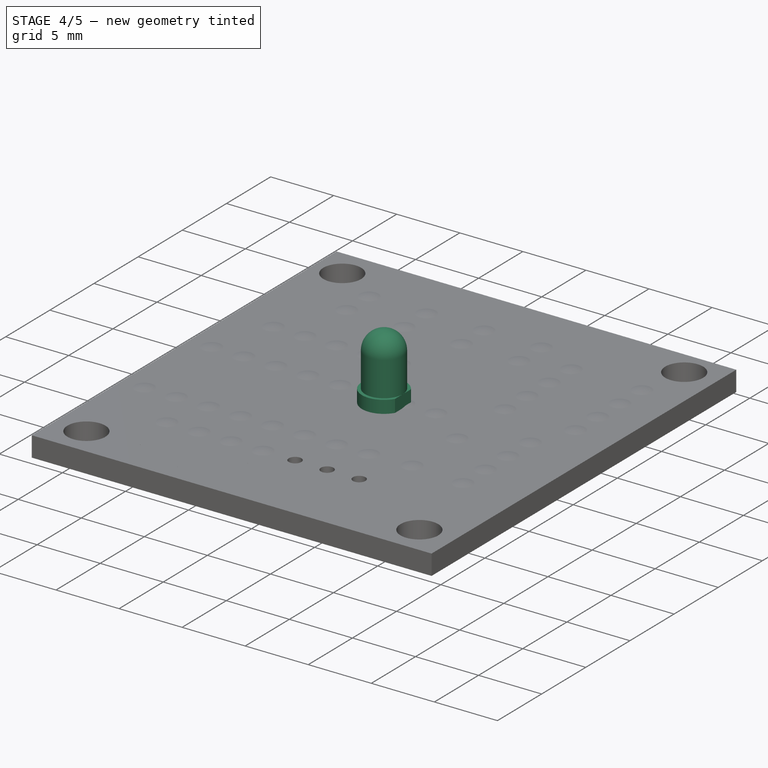
[diagram: stage 4 of 5 — iso view after this stage's code; geometry added in this stage tinted green]
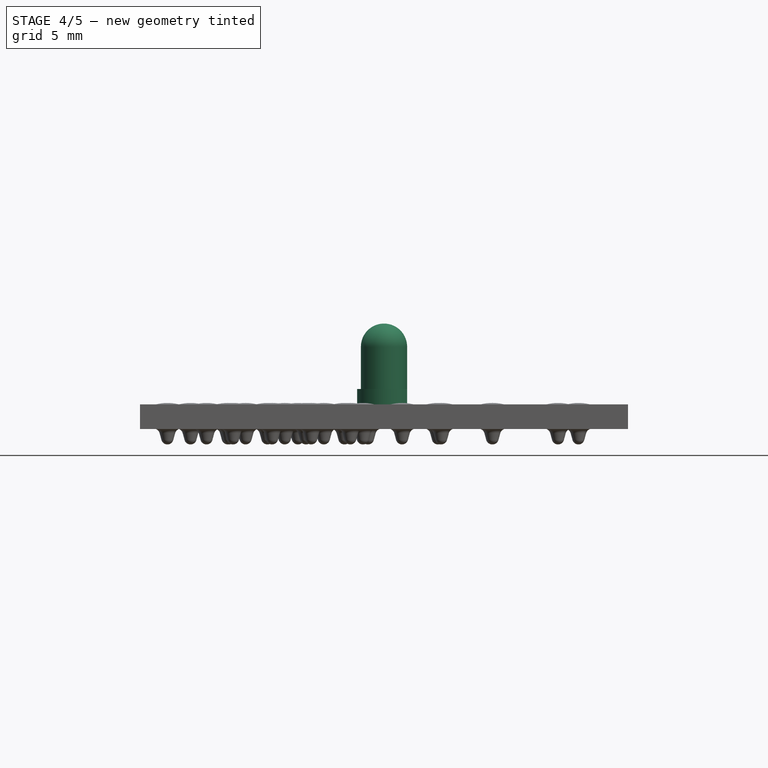
[diagram: stage 4 of 5 — front view after this stage's code; geometry added in this stage tinted green]
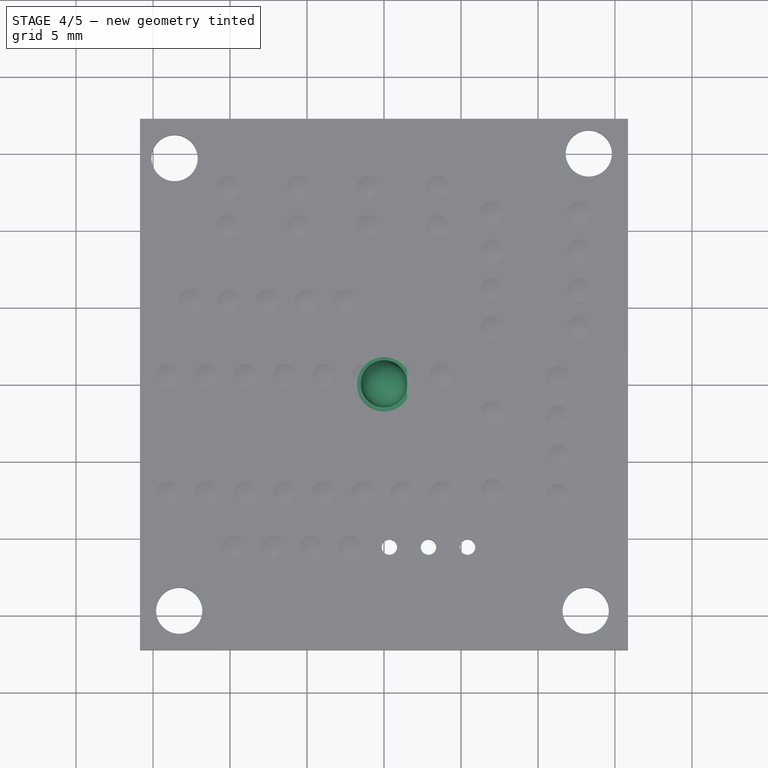
[diagram: stage 4 of 5 — top view after this stage's code; geometry added in this stage tinted green]
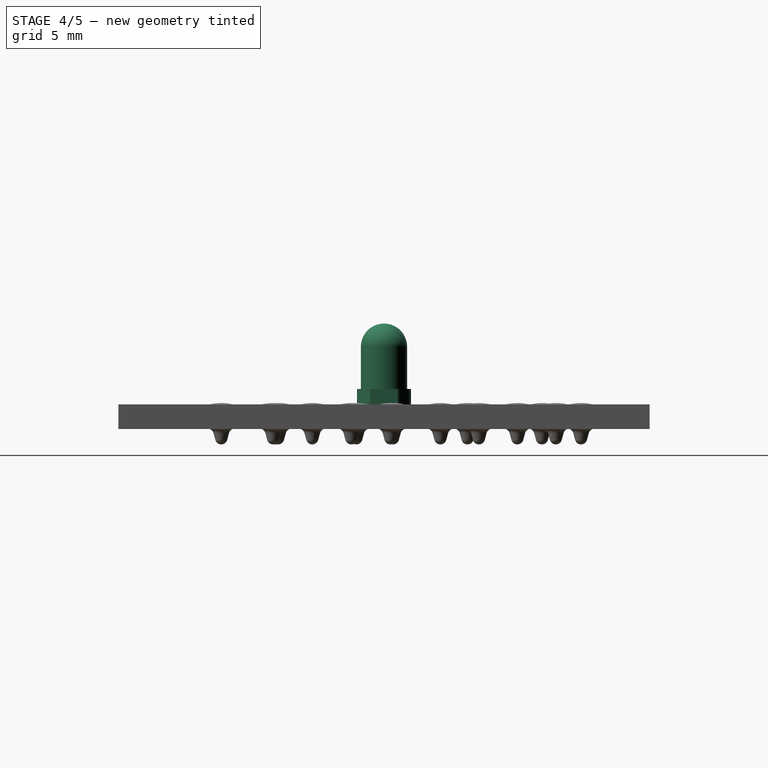
[diagram: stage 4 of 5 — right view after this stage's code; geometry added in this stage tinted green]
FEATURE [Part::Feature] Body001001  label="led1"
  Placement = pos=(3.475,11.5,0) rot=(0,0,-1;1.5708rad)
  shape: bbox 3.5 x 3.25 x 7.79 mm, 16 faces (baked)
FEATURE [Part::Feature] Body001002  label="led2"
  Placement = pos=(-1.05,11.5,0) rot=(0,0,-1;1.5708rad)
  shape: bbox 3.5 x 3.25 x 7.79 mm, 16 faces (baked)
FEATURE [Part::Feature] Body001003  label="led3"
  Placement = pos=(-5.6,11.5,0) rot=(0,0,-1;1.5708rad)
  shape: bbox 3.5 x 3.25 x 7.79 mm, 16 faces (baked)
FEATURE [Part::Feature] Body001004  label="led4"
  Placement = pos=(-10.15,11.5,0) rot=(0,0,-1;1.5708rad)
  shape: bbox 3.5 x 3.25 x 7.79 mm, 16 faces (baked)
FEATURE [Part::Feature] Shape006  label="PinHeader_1x04"
  Placement = pos=(-9.815,-10.57,0) rot=(0,0,1;1.5708rad)
  shape: bbox 10.16 x 2.54 x 11.54 mm, 100 faces (baked)
FEATURE [Part::Feature] Shape014  label="PinHeader_1x04-2"
  Placement = pos=(11.29,0.42,0) rot=(0,0,1;0rad)
  shape: bbox 2.54 x 10.16 x 11.54 mm, 100 faces (baked)
FEATURE [Part::Feature] Shape013  label="C"
  Placement = pos=(7.06,-1.845,0) rot=(0,0,-1;1.5708rad)
  shape: bbox 2.5 x 5.5 x 7.1 mm, 10 faces (baked)
FEATURE [Part::Feature] Part__Feature  label="IC_Sockel_16P"
  Placement = pos=(-15.355,-3.22,-2e-15) rot=(0.57735,-0.57735,-0.57735;2.0944rad)
  shape: bbox 20.32 x 10.16 x 8.46 mm, 278 faces (baked)
FEATURE [Part::Feature] Part__Feature001  label="JST_B05B_XH_A"
  Placement = pos=(-12.575,5.41,0) rot=(0,0,1;0rad)
  shape: bbox 14.9 x 5.75 x 10.4 mm, 165 faces (baked)
FEATURE [Part::Feature] Fusion001001  label="Jumper"
  Placement = pos=(11.29,-2.16,0) rot=(0,0,-1;1.5708rad)
  shape: bbox 2.5 x 5 x 6 mm, 108 faces (baked)
FEATURE [Part::Feature] Fusion001002  label="IC"
  Placement = pos=(-5.185,-3.23,4.17) rot=(0,0,-1;1.5708rad)
  shape: bbox 19.3 x 8.12 x 6.8 mm, 288 faces (baked)
FEATURE [Part::Feature] Body001005001  label="R1"
  Placement = pos=(9.82,3.64,1.04) rot=(0,0,1;0rad)
  shape: bbox 5.9 x 1.7 x 4.03 mm, 26 faces (baked)
FEATURE [Part::Feature] Body001005002  label="R2"
  Placement = pos=(9.82,6.16,1.04) rot=(0,0,1;0rad)
  shape: bbox 5.9 x 1.7 x 4.03 mm, 26 faces (baked)
FEATURE [Part::Feature] Body001005003  label="R3"
  Placement = pos=(9.82,8.65,1.04) rot=(0,0,1;0rad)
  shape: bbox 5.9 x 1.7 x 4.03 mm, 26 faces (baked)
FEATURE [Part::Feature] Body001005004  label="R4"
  Placement = pos=(9.82,11.17,1.04) rot=(0,0,1;0rad)
  shape: bbox 5.9 x 1.7 x 4.03 mm, 26 faces (baked)
FEATURE [App::DocumentObjectGroup] Group001  label="componentes"
  Group = -> [Body001001,Body001002,Body001003,Body001004,Part__Feature001,Part__Feature,Fusion001002,Shape013,Shape006,Shape014,Fusion001001,Body001005001,Body001005002,Body001005003,Body001005004]
FEATURE [Image::ImagePlane] ImagePlane004  label="Image-top"
  Placement = pos=(0,0,0) rot=(0,0,1;1.5708rad)
  XSize = 34.5
  YSize = 31.7
FEATURE [Image::ImagePlane] ImagePlane005  label="Image-bottom"
  Placement = pos=(0,0,0) rot=(-0.707107,0.707107,0;3.14159rad)
  XSize = 34.5
  YSize = 31.7
FEATURE [App::DocumentObjectGroup] Group  label="images"
  Group = -> [ImagePlane004,ImagePlane005]
FEATURE [Sketcher::SketchObject] Sketch002  label="Sketch-led-profile"
  FullyConstrained = false
  MapMode = 5
  Placement = pos=(0,0,0) rot=(1,0,0;1.5708rad)
  Support = -> [XZ_Plane001]
  sketch-geometry (6):
    g0: LineSegment StartX=0 StartY=0 StartZ=0 EndX=0 EndY=5.25 EndZ=0
    g1: ArcOfCircle CenterX=0 CenterY=3.75 CenterZ=0 NormalX=0 NormalY=0 NormalZ=1 AngleXU=0 Radius=1.5 StartAngle=0 EndAngle=1.5708
    g2: LineSegment StartX=1.5 StartY=3.75 StartZ=0 EndX=1.5 EndY=1 EndZ=0
    g3: LineSegment StartX=1.5 StartY=1 StartZ=0 EndX=1.75 EndY=1 EndZ=0
    g4: LineSegment StartX=1.75 StartY=1 StartZ=0 EndX=1.75 EndY=0 EndZ=0
    g5: LineSegment StartX=1.75 StartY=0 StartZ=0 EndX=0 EndY=0 EndZ=0
  constraints (16):
    c: Coincident(g-1,g0)
    c: PointOnObject(g0,g-2)
    c: Perpendicular(g0,g1) = 1.5708
    c: Tangent(g1,g2) = 1.5708
    c: Coincident(g2,g3)
    c: Coincident(g3,g4)
    c: Vertical(g4)
    c: Coincident(g4,g5)
    c: Coincident(g5,g0)
    c: Horizontal(g5)
    c: Vertical(g2)
    c: Radius(g1) = 1.5
    c: DistanceY(g0,g0) = 5.25
    c: Horizontal(g3)
    c: DistanceX(g5,g5) = 1.75
    c: DistanceY(g4,g4) = 1
FEATURE [PartDesign::Revolution] Revolution  label="Revolution-led"
  AllowMultiFace = false
  Angle = 360
  Axis = (0,0,1)
  Base = (0,0,0)
  Placement = pos=(0,0,0) rot=(1,0,0;1.5708rad)
  Profile = -> Sketch002
  ReferenceAxis = -> Sketch002 [V_Axis]
  Reversed = true
FEATURE [PartDesign::Body] Body001005006  label="Body-solder-joint"
  Group = -> [Sketch010,Revolution002]
  Origin = -> Origin006
  Tip = -> Revolution002
FEATURE [PartDesign::Pocket] Pocket002005  label="Pocket-flat"
  AllowMultiFace = false
  BaseFeature = -> Revolution
  Length = 1
  Length2 = 100
  Placement = pos=(0,0,0) rot=(1,0,0;1.5708rad)
  Profile = -> Sketch003
  Type = 0
FEATURE [App::DocumentObjectGroup] Group003  label="solder"
  Group = -> [Array005,Array003,Array001,Array002,Array,Array004,Array006]
FEATURE [Sketcher::SketchObject] Sketch006  label="Sketch-text"
  AttachmentOffset = pos=(-0.5,-0.7,0) rot=(0,0,1;-1.5708rad)
  FullyConstrained = false
  MapMode = 5
  Placement = pos=(-0.5,-0.7,0) rot=(0,0,1;4.71239rad)
  Support = -> [Pocket]
  sketch-geometry (299):
    g0: BSplineCurve PolesCount=3 KnotsCount=2 Degree=2 IsPeriodic=0
    g1: BSplineCurve PolesCount=3 KnotsCount=2 Degree=2 IsPeriodic=0
    g2: BSplineCurve PolesCount=3 KnotsCount=2 Degree=2 IsPeriodic=0
    g3: LineSegment StartX=14.349 StartY=-8.71737 StartZ=0 EndX=15.0439 EndY=-8.71737 EndZ=0
    g4: BSplineCurve PolesCount=3 KnotsCount=2 Degree=2 IsPeriodic=0
    g5: BSplineCurve PolesCount=3 KnotsCount=2 Degree=2 IsPeriodic=0
    g6: BSplineCurve PolesCount=3 KnotsCount=2 Degree=2 IsPeriodic=0
    g7: BSplineCurve PolesCount=3 KnotsCount=2 Degree=2 IsPeriodic=0
    g8: LineSegment StartX=14.6229 StartY=-8.8918 StartZ=0 EndX=14.3524 EndY=-8.8918 EndZ=0
    g9: LineSegment StartX=14.6229 StartY=-9.8884 StartZ=0 EndX=14.6229 EndY=-8.8918 EndZ=0
    g10: LineSegment StartX=14.3524 StartY=-9.8884 StartZ=0 EndX=14.6229 EndY=-9.8884 EndZ=0
    g11: BSplineCurve PolesCount=3 KnotsCount=2 Degree=2 IsPeriodic=0
    g12: BSplineCurve PolesCount=3 KnotsCount=2 Degree=2 IsPeriodic=0
    g13: BSplineCurve PolesCount=3 KnotsCount=2 Degree=2 IsPeriodic=0
    g14: BSplineCurve PolesCount=3 KnotsCount=2 Degree=2 IsPeriodic=0
    g15: LineSegment StartX=15.0439 StartY=-10.0628 StartZ=0 EndX=14.349 EndY=-10.0628 EndZ=0
    g16: BSplineCurve PolesCount=3 KnotsCount=2 Degree=2 IsPeriodic=0
    g17: BSplineCurve PolesCount=3 KnotsCount=2 Degree=2 IsPeriodic=0
    g18: BSplineCurve PolesCount=3 KnotsCount=2 Degree=2 IsPeriodic=0
    g19: BSplineCurve PolesCount=3 KnotsCount=2 Degree=2 IsPeriodic=0
    g20: LineSegment StartX=14.799 StartY=-9.8884 StartZ=0 EndX=15.0479 EndY=-9.8884 EndZ=0
    g21: LineSegment StartX=14.799 StartY=-8.8918 StartZ=0 EndX=14.799 EndY=-9.8884 EndZ=0
    g22: LineSegment StartX=15.0479 StartY=-8.8918 StartZ=0 EndX=14.799 EndY=-8.8918 EndZ=0
    g23: BSplineCurve PolesCount=3 KnotsCount=2 Degree=2 IsPeriodic=0
    g24: LineSegment StartX=13.8592 StartY=-8.80544 StartZ=0 EndX=13.8592 EndY=-10.0628 EndZ=0
    g25: BSplineCurve PolesCount=3 KnotsCount=2 Degree=2 IsPeriodic=0
    g26: BSplineCurve PolesCount=3 KnotsCount=2 Degree=2 IsPeriodic=0
    g27: BSplineCurve PolesCount=3 KnotsCount=2 Degree=2 IsPeriodic=0
    g28: BSplineCurve PolesCount=3 KnotsCount=2 Degree=2 IsPeriodic=0
    g29: LineSegment StartX=13.6831 StartY=-9.7526 StartZ=0 EndX=13.6831 EndY=-8.80544 EndZ=0
    g30: LineSegment StartX=13.2257 StartY=-8.71737 StartZ=0 EndX=13.6831 EndY=-9.7526 EndZ=0
    g31: LineSegment StartX=12.9922 StartY=-8.71737 StartZ=0 EndX=13.2257 EndY=-8.71737 EndZ=0
    g32: LineSegment StartX=12.9922 StartY=-9.97646 StartZ=0 EndX=12.9922 EndY=-8.71737 EndZ=0
    g33: BSplineCurve PolesCount=3 KnotsCount=2 Degree=2 IsPeriodic=0
    g34: BSplineCurve PolesCount=3 KnotsCount=2 Degree=2 IsPeriodic=0
    g35: BSplineCurve PolesCount=3 KnotsCount=2 Degree=2 IsPeriodic=0
    g36: BSplineCurve PolesCount=3 KnotsCount=2 Degree=2 IsPeriodic=0
    g37: LineSegment StartX=13.1683 StartY=-9.02419 StartZ=0 EndX=13.1683 EndY=-9.97646 EndZ=0
    g38: LineSegment StartX=13.6274 StartY=-10.0628 StartZ=0 EndX=13.1683 EndY=-9.02419 EndZ=0
    g39: LineSegment StartX=13.8592 StartY=-10.0628 StartZ=0 EndX=13.6274 EndY=-10.0628 EndZ=0
    g40: BSplineCurve PolesCount=3 KnotsCount=2 Degree=2 IsPeriodic=0
    g41: BSplineCurve PolesCount=3 KnotsCount=2 Degree=2 IsPeriodic=0
    g42: BSplineCurve PolesCount=3 KnotsCount=2 Degree=2 IsPeriodic=0
    g43: LineSegment StartX=11.8013 StartY=-8.71737 StartZ=0 EndX=12.4825 EndY=-8.71737 EndZ=0
    g44: BSplineCurve PolesCount=3 KnotsCount=2 Degree=2 IsPeriodic=0
    g45: BSplineCurve PolesCount=3 KnotsCount=2 Degree=2 IsPeriodic=0
    g46: LineSegment StartX=11.7138 StartY=-9.24351 StartZ=0 EndX=11.7138 EndY=-8.80544 EndZ=0
    g47: BSplineCurve PolesCount=3 KnotsCount=2 Degree=2 IsPeriodic=0
    g48: BSplineCurve PolesCount=3 KnotsCount=2 Degree=2 IsPeriodic=0
    g49: BSplineCurve PolesCount=3 KnotsCount=2 Degree=2 IsPeriodic=0
    g50: BSplineCurve PolesCount=3 KnotsCount=2 Degree=2 IsPeriodic=0
    g51: LineSegment StartX=11.8899 StartY=-8.8918 StartZ=0 EndX=11.8899 EndY=-9.24351 EndZ=0
    g52: LineSegment StartX=12.0467 StartY=-8.8918 StartZ=0 EndX=11.8899 EndY=-8.8918 EndZ=0
    g53: LineSegment StartX=12.0467 StartY=-10.0628 StartZ=0 EndX=12.0467 EndY=-8.8918 EndZ=0
    g54: LineSegment StartX=12.4808 StartY=-10.0628 StartZ=0 EndX=12.0467 EndY=-10.0628 EndZ=0
    g55: BSplineCurve PolesCount=3 KnotsCount=2 Degree=2 IsPeriodic=0
    g56: BSplineCurve PolesCount=3 KnotsCount=2 Degree=2 IsPeriodic=0
    g57: BSplineCurve PolesCount=3 KnotsCount=2 Degree=2 IsPeriodic=0
    g58: BSplineCurve PolesCount=3 KnotsCount=2 Degree=2 IsPeriodic=0
    g59: LineSegment StartX=12.2229 StartY=-9.8884 StartZ=0 EndX=12.4808 EndY=-9.8884 EndZ=0
    g60: LineSegment StartX=12.2229 StartY=-8.8918 StartZ=0 EndX=12.2229 EndY=-9.8884 EndZ=0
    g61: LineSegment StartX=12.4808 StartY=-8.8918 StartZ=0 EndX=12.2229 EndY=-8.8918 EndZ=0
    g62: BSplineCurve PolesCount=3 KnotsCount=2 Degree=2 IsPeriodic=0
    g63: BSplineCurve PolesCount=3 KnotsCount=2 Degree=2 IsPeriodic=0
    g64: BSplineCurve PolesCount=3 KnotsCount=2 Degree=2 IsPeriodic=0
    g65: BSplineCurve PolesCount=3 KnotsCount=2 Degree=2 IsPeriodic=0
    g66: LineSegment StartX=14.349 StartY=-6.16737 StartZ=0 EndX=15.0439 EndY=-6.16737 EndZ=0
    g67: BSplineCurve PolesCount=3 KnotsCount=2 Degree=2 IsPeriodic=0
    g68: BSplineCurve PolesCount=3 KnotsCount=2 Degree=2 IsPeriodic=0
    g69: BSplineCurve PolesCount=3 KnotsCount=2 Degree=2 IsPeriodic=0
    g70: BSplineCurve PolesCount=3 KnotsCount=2 Degree=2 IsPeriodic=0
    g71: LineSegment StartX=14.6229 StartY=-6.3418 StartZ=0 EndX=14.3524 EndY=-6.3418 EndZ=0
    g72: LineSegment StartX=14.6229 StartY=-7.3384 StartZ=0 EndX=14.6229 EndY=-6.3418 EndZ=0
    g73: LineSegment StartX=14.3524 StartY=-7.3384 StartZ=0 EndX=14.6229 EndY=-7.3384 EndZ=0
    g74: BSplineCurve PolesCount=3 KnotsCount=2 Degree=2 IsPeriodic=0
    g75: BSplineCurve PolesCount=3 KnotsCount=2 Degree=2 IsPeriodic=0
    g76: BSplineCurve PolesCount=3 KnotsCount=2 Degree=2 IsPeriodic=0
    g77: BSplineCurve PolesCount=3 KnotsCount=2 Degree=2 IsPeriodic=0
    g78: LineSegment StartX=15.0439 StartY=-7.51283 StartZ=0 EndX=14.349 EndY=-7.51283 EndZ=0
    g79: BSplineCurve PolesCount=3 KnotsCount=2 Degree=2 IsPeriodic=0
    g80: BSplineCurve PolesCount=3 KnotsCount=2 Degree=2 IsPeriodic=0
    g81: BSplineCurve PolesCount=3 KnotsCount=2 Degree=2 IsPeriodic=0
    g82: BSplineCurve PolesCount=3 KnotsCount=2 Degree=2 IsPeriodic=0
    g83: LineSegment StartX=14.799 StartY=-7.3384 StartZ=0 EndX=15.0479 EndY=-7.3384 EndZ=0
    g84: LineSegment StartX=14.799 StartY=-6.3418 StartZ=0 EndX=14.799 EndY=-7.3384 EndZ=0
    g85: LineSegment StartX=15.0479 StartY=-6.3418 StartZ=0 EndX=14.799 EndY=-6.3418 EndZ=0
    g86: BSplineCurve PolesCount=3 KnotsCount=2 Degree=2 IsPeriodic=0
    g87: LineSegment StartX=13.8592 StartY=-6.25544 StartZ=0 EndX=13.8592 EndY=-7.51283 EndZ=0
    g88: BSplineCurve PolesCount=3 KnotsCount=2 Degree=2 IsPeriodic=0
    g89: BSplineCurve PolesCount=3 KnotsCount=2 Degree=2 IsPeriodic=0
    g90: BSplineCurve PolesCount=3 KnotsCount=2 Degree=2 IsPeriodic=0
    g91: BSplineCurve PolesCount=3 KnotsCount=2 Degree=2 IsPeriodic=0
    g92: LineSegment StartX=13.6831 StartY=-7.2026 StartZ=0 EndX=13.6831 EndY=-6.25544 EndZ=0
    g93: LineSegment StartX=13.2257 StartY=-6.16737 StartZ=0 EndX=13.6831 EndY=-7.2026 EndZ=0
    g94: LineSegment StartX=12.9922 StartY=-6.16737 StartZ=0 EndX=13.2257 EndY=-6.16737 EndZ=0
    g95: LineSegment StartX=12.9922 StartY=-7.42646 StartZ=0 EndX=12.9922 EndY=-6.16737 EndZ=0
    g96: BSplineCurve PolesCount=3 KnotsCount=2 Degree=2 IsPeriodic=0
    g97: BSplineCurve PolesCount=3 KnotsCount=2 Degree=2 IsPeriodic=0
    g98: BSplineCurve PolesCount=3 KnotsCount=2 Degree=2 IsPeriodic=0
    g99: BSplineCurve PolesCount=3 KnotsCount=2 Degree=2 IsPeriodic=0
    g100: LineSegment StartX=13.1683 StartY=-6.47419 StartZ=0 EndX=13.1683 EndY=-7.42646 EndZ=0
    g101: LineSegment StartX=13.6274 StartY=-7.51283 StartZ=0 EndX=13.1683 EndY=-6.47419 EndZ=0
    g102: LineSegment StartX=13.8592 StartY=-7.51283 StartZ=0 EndX=13.6274 EndY=-7.51283 EndZ=0
    g103: LineSegment StartX=12.5865 StartY=-6.16737 StartZ=0 EndX=12.5865 EndY=-6.75715 EndZ=0
    g104: LineSegment StartX=11.8086 StartY=-6.16737 StartZ=0 EndX=12.5865 EndY=-6.16737 EndZ=0
    g105: BSplineCurve PolesCount=3 KnotsCount=2 Degree=2 IsPeriodic=0
    g106: BSplineCurve PolesCount=3 KnotsCount=2 Degree=2 IsPeriodic=0
    g107: BSplineCurve PolesCount=3 KnotsCount=2 Degree=2 IsPeriodic=0
    g108: BSplineCurve PolesCount=3 KnotsCount=2 Degree=2 IsPeriodic=0
    g109: LineSegment StartX=12.4104 StartY=-6.3418 StartZ=0 EndX=11.8081 EndY=-6.3418 EndZ=0
    g110: LineSegment StartX=12.4104 StartY=-6.75658 StartZ=0 EndX=12.4104 EndY=-6.3418 EndZ=0
    g111: LineSegment StartX=11.895 StartY=-6.75658 StartZ=0 EndX=12.4104 EndY=-6.75658 EndZ=0
    g112: BSplineCurve PolesCount=3 KnotsCount=2 Degree=2 IsPeriodic=0
    g113: BSplineCurve PolesCount=3 KnotsCount=2 Degree=2 IsPeriodic=0
    g114: LineSegment StartX=11.7194 StartY=-7.33953 StartZ=0 EndX=11.7194 EndY=-6.92874 EndZ=0
    g115: BSplineCurve PolesCount=3 KnotsCount=2 Degree=2 IsPeriodic=0
    g116: BSplineCurve PolesCount=3 KnotsCount=2 Degree=2 IsPeriodic=0
    g117: LineSegment StartX=12.499 StartY=-7.51283 StartZ=0 EndX=11.895 EndY=-7.51283 EndZ=0
    g118: BSplineCurve PolesCount=3 KnotsCount=2 Degree=2 IsPeriodic=0
    g119: BSplineCurve PolesCount=3 KnotsCount=2 Degree=2 IsPeriodic=0
    g120: BSplineCurve PolesCount=3 KnotsCount=2 Degree=2 IsPeriodic=0
    g121: BSplineCurve PolesCount=3 KnotsCount=2 Degree=2 IsPeriodic=0
    g122: LineSegment StartX=11.8956 StartY=-7.3384 StartZ=0 EndX=12.4996 EndY=-7.3384 EndZ=0
    g123: LineSegment StartX=11.8956 StartY=-6.93101 StartZ=0 EndX=11.8956 EndY=-7.3384 EndZ=0
    g124: LineSegment StartX=12.4109 StartY=-6.93101 StartZ=0 EndX=11.8956 EndY=-6.93101 EndZ=0
    g125: BSplineCurve PolesCount=3 KnotsCount=2 Degree=2 IsPeriodic=0
    g126: BSplineCurve PolesCount=3 KnotsCount=2 Degree=2 IsPeriodic=0
    g127: BSplineCurve PolesCount=3 KnotsCount=2 Degree=2 IsPeriodic=0
    g128: BSplineCurve PolesCount=3 KnotsCount=2 Degree=2 IsPeriodic=0
    g129: BSplineCurve PolesCount=3 KnotsCount=2 Degree=2 IsPeriodic=0
    g130: LineSegment StartX=14.349 StartY=-1.17737 StartZ=0 EndX=15.0439 EndY=-1.17737 EndZ=0
    g131: BSplineCurve PolesCount=3 KnotsCount=2 Degree=2 IsPeriodic=0
    g132: BSplineCurve PolesCount=3 KnotsCount=2 Degree=2 IsPeriodic=0
    g133: BSplineCurve PolesCount=3 KnotsCount=2 Degree=2 IsPeriodic=0
    g134: BSplineCurve PolesCount=3 KnotsCount=2 Degree=2 IsPeriodic=0
    g135: LineSegment StartX=14.6229 StartY=-1.3518 StartZ=0 EndX=14.3524 EndY=-1.3518 EndZ=0
    g136: LineSegment StartX=14.6229 StartY=-2.3484 StartZ=0 EndX=14.6229 EndY=-1.3518 EndZ=0
    g137: LineSegment StartX=14.3524 StartY=-2.3484 StartZ=0 EndX=14.6229 EndY=-2.3484 EndZ=0
    g138: BSplineCurve PolesCount=3 KnotsCount=2 Degree=2 IsPeriodic=0
    g139: BSplineCurve PolesCount=3 KnotsCount=2 Degree=2 IsPeriodic=0
    g140: BSplineCurve PolesCount=3 KnotsCount=2 Degree=2 IsPeriodic=0
    g141: BSplineCurve PolesCount=3 KnotsCount=2 Degree=2 IsPeriodic=0
    g142: LineSegment StartX=15.0439 StartY=-2.52283 StartZ=0 EndX=14.349 EndY=-2.52283 EndZ=0
    g143: BSplineCurve PolesCount=3 KnotsCount=2 Degree=2 IsPeriodic=0
    g144: BSplineCurve PolesCount=3 KnotsCount=2 Degree=2 IsPeriodic=0
    g145: BSplineCurve PolesCount=3 KnotsCount=2 Degree=2 IsPeriodic=0
    g146: BSplineCurve PolesCount=3 KnotsCount=2 Degree=2 IsPeriodic=0
    g147: LineSegment StartX=14.799 StartY=-2.3484 StartZ=0 EndX=15.0479 EndY=-2.3484 EndZ=0
    g148: LineSegment StartX=14.799 StartY=-1.3518 StartZ=0 EndX=14.799 EndY=-2.3484 EndZ=0
    g149: LineSegment StartX=15.0479 StartY=-1.3518 StartZ=0 EndX=14.799 EndY=-1.3518 EndZ=0
    g150: BSplineCurve PolesCount=3 KnotsCount=2 Degree=2 IsPeriodic=0
    g151: LineSegment StartX=13.8592 StartY=-1.26544 StartZ=0 EndX=13.8592 EndY=-2.52283 EndZ=0
    g152: BSplineCurve PolesCount=3 KnotsCount=2 Degree=2 IsPeriodic=0
    g153: BSplineCurve PolesCount=3 KnotsCount=2 Degree=2 IsPeriodic=0
    g154: BSplineCurve PolesCount=3 KnotsCount=2 Degree=2 IsPeriodic=0
    g155: BSplineCurve PolesCount=3 KnotsCount=2 Degree=2 IsPeriodic=0
    g156: LineSegment StartX=13.6831 StartY=-2.2126 StartZ=0 EndX=13.6831 EndY=-1.26544 EndZ=0
    g157: LineSegment StartX=13.2257 StartY=-1.17737 StartZ=0 EndX=13.6831 EndY=-2.2126 EndZ=0
    g158: LineSegment StartX=12.9922 StartY=-1.17737 StartZ=0 EndX=13.2257 EndY=-1.17737 EndZ=0
    g159: LineSegment StartX=12.9922 StartY=-2.43646 StartZ=0 EndX=12.9922 EndY=-1.17737 EndZ=0
    g160: BSplineCurve PolesCount=3 KnotsCount=2 Degree=2 IsPeriodic=0
    g161: BSplineCurve PolesCount=3 KnotsCount=2 Degree=2 IsPeriodic=0
    g162: BSplineCurve PolesCount=3 KnotsCount=2 Degree=2 IsPeriodic=0
    g163: BSplineCurve PolesCount=3 KnotsCount=2 Degree=2 IsPeriodic=0
    g164: LineSegment StartX=13.1683 StartY=-1.48419 StartZ=0 EndX=13.1683 EndY=-2.43646 EndZ=0
    g165: LineSegment StartX=13.6274 StartY=-2.52283 StartZ=0 EndX=13.1683 EndY=-1.48419 EndZ=0
    g166: LineSegment StartX=13.8592 StartY=-2.52283 StartZ=0 EndX=13.6274 EndY=-2.52283 EndZ=0
    g167: LineSegment StartX=12.5138 StartY=-1.62112 StartZ=0 EndX=12.5138 EndY=-2.43703 EndZ=0
    g168: LineSegment StartX=11.999 StartY=-1.62112 StartZ=0 EndX=12.5138 EndY=-1.62112 EndZ=0
    g169: LineSegment StartX=11.999 StartY=-1.26601 StartZ=0 EndX=11.999 EndY=-1.62112 EndZ=0
    g170: BSplineCurve PolesCount=3 KnotsCount=2 Degree=2 IsPeriodic=0
    g171: BSplineCurve PolesCount=3 KnotsCount=2 Degree=2 IsPeriodic=0
    g172: BSplineCurve PolesCount=3 KnotsCount=2 Degree=2 IsPeriodic=0
    g173: BSplineCurve PolesCount=3 KnotsCount=2 Degree=2 IsPeriodic=0
    g174: LineSegment StartX=11.8229 StartY=-1.62112 StartZ=0 EndX=11.8229 EndY=-1.26601 EndZ=0
    g175: BSplineCurve PolesCount=3 KnotsCount=2 Degree=2 IsPeriodic=0
    g176: BSplineCurve PolesCount=3 KnotsCount=2 Degree=2 IsPeriodic=0
    g177: BSplineCurve PolesCount=3 KnotsCount=2 Degree=2 IsPeriodic=0
    g178: BSplineCurve PolesCount=3 KnotsCount=2 Degree=2 IsPeriodic=0
    g179: LineSegment StartX=11.8229 StartY=-2.29158 StartZ=0 EndX=11.8229 EndY=-1.79555 EndZ=0
    g180: BSplineCurve PolesCount=3 KnotsCount=2 Degree=2 IsPeriodic=0
    g181: BSplineCurve PolesCount=3 KnotsCount=2 Degree=2 IsPeriodic=0
    g182: BSplineCurve PolesCount=3 KnotsCount=2 Degree=2 IsPeriodic=0
    g183: BSplineCurve PolesCount=3 KnotsCount=2 Degree=2 IsPeriodic=0
    g184: LineSegment StartX=11.999 StartY=-1.79555 StartZ=0 EndX=11.999 EndY=-2.29158 EndZ=0
    g185: LineSegment StartX=12.3376 StartY=-1.79555 StartZ=0 EndX=11.999 EndY=-1.79555 EndZ=0
    g186: LineSegment StartX=12.3376 StartY=-2.43703 StartZ=0 EndX=12.3376 EndY=-1.79555 EndZ=0
    g187: BSplineCurve PolesCount=3 KnotsCount=2 Degree=2 IsPeriodic=0
    g188: BSplineCurve PolesCount=3 KnotsCount=2 Degree=2 IsPeriodic=0
    g189: BSplineCurve PolesCount=3 KnotsCount=2 Degree=2 IsPeriodic=0
    g190: BSplineCurve PolesCount=3 KnotsCount=2 Degree=2 IsPeriodic=0
    g191: BSplineCurve PolesCount=3 KnotsCount=2 Degree=2 IsPeriodic=0
    g192: BSplineCurve PolesCount=3 KnotsCount=2 Degree=2 IsPeriodic=0
    g193: BSplineCurve PolesCount=3 KnotsCount=2 Degree=2 IsPeriodic=0
    g194: LineSegment StartX=14.349 StartY=-3.66737 StartZ=0 EndX=15.0439 EndY=-3.66737 EndZ=0
    g195: BSplineCurve PolesCount=3 KnotsCount=2 Degree=2 IsPeriodic=0
    g196: BSplineCurve PolesCount=3 KnotsCount=2 Degree=2 IsPeriodic=0
    g197: BSplineCurve PolesCount=3 KnotsCount=2 Degree=2 IsPeriodic=0
    g198: BSplineCurve PolesCount=3 KnotsCount=2 Degree=2 IsPeriodic=0
    g199: LineSegment StartX=14.6229 StartY=-3.8418 StartZ=0 EndX=14.3524 EndY=-3.8418 EndZ=0
    g200: LineSegment StartX=14.6229 StartY=-4.8384 StartZ=0 EndX=14.6229 EndY=-3.8418 EndZ=0
    g201: LineSegment StartX=14.3524 StartY=-4.8384 StartZ=0 EndX=14.6229 EndY=-4.8384 EndZ=0
    g202: BSplineCurve PolesCount=3 KnotsCount=2 Degree=2 IsPeriodic=0
    g203: BSplineCurve PolesCount=3 KnotsCount=2 Degree=2 IsPeriodic=0
    g204: BSplineCurve PolesCount=3 KnotsCount=2 Degree=2 IsPeriodic=0
    g205: BSplineCurve PolesCount=3 KnotsCount=2 Degree=2 IsPeriodic=0
    g206: LineSegment StartX=15.0439 StartY=-5.01283 StartZ=0 EndX=14.349 EndY=-5.01283 EndZ=0
    g207: BSplineCurve PolesCount=3 KnotsCount=2 Degree=2 IsPeriodic=0
    g208: BSplineCurve PolesCount=3 KnotsCount=2 Degree=2 IsPeriodic=0
    g209: BSplineCurve PolesCount=3 KnotsCount=2 Degree=2 IsPeriodic=0
    g210: BSplineCurve PolesCount=3 KnotsCount=2 Degree=2 IsPeriodic=0
    g211: LineSegment StartX=14.799 StartY=-4.8384 StartZ=0 EndX=15.0479 EndY=-4.8384 EndZ=0
    g212: LineSegment StartX=14.799 StartY=-3.8418 StartZ=0 EndX=14.799 EndY=-4.8384 EndZ=0
    g213: LineSegment StartX=15.0479 StartY=-3.8418 StartZ=0 EndX=14.799 EndY=-3.8418 EndZ=0
    g214: BSplineCurve PolesCount=3 KnotsCount=2 Degree=2 IsPeriodic=0
    g215: LineSegment StartX=13.8592 StartY=-3.75544 StartZ=0 EndX=13.8592 EndY=-5.01283 EndZ=0
    g216: BSplineCurve PolesCount=3 KnotsCount=2 Degree=2 IsPeriodic=0
    g217: BSplineCurve PolesCount=3 KnotsCount=2 Degree=2 IsPeriodic=0
    g218: BSplineCurve PolesCount=3 KnotsCount=2 Degree=2 IsPeriodic=0
    g219: BSplineCurve PolesCount=3 KnotsCount=2 Degree=2 IsPeriodic=0
    g220: LineSegment StartX=13.6831 StartY=-4.7026 StartZ=0 EndX=13.6831 EndY=-3.75544 EndZ=0
    g221: LineSegment StartX=13.2257 StartY=-3.66737 StartZ=0 EndX=13.6831 EndY=-4.7026 EndZ=0
    g222: LineSegment StartX=12.9922 StartY=-3.66737 StartZ=0 EndX=13.2257 EndY=-3.66737 EndZ=0
    g223: LineSegment StartX=12.9922 StartY=-4.92646 StartZ=0 EndX=12.9922 EndY=-3.66737 EndZ=0
    g224: BSplineCurve PolesCount=3 KnotsCount=2 Degree=2 IsPeriodic=0
    g225: BSplineCurve PolesCount=3 KnotsCount=2 Degree=2 IsPeriodic=0
    g226: BSplineCurve PolesCount=3 KnotsCount=2 Degree=2 IsPeriodic=0
    g227: BSplineCurve PolesCount=3 KnotsCount=2 Degree=2 IsPeriodic=0
    g228: LineSegment StartX=13.1683 StartY=-3.97419 StartZ=0 EndX=13.1683 EndY=-4.92646 EndZ=0
    g229: LineSegment StartX=13.6274 StartY=-5.01283 StartZ=0 EndX=13.1683 EndY=-3.97419 EndZ=0
    g230: LineSegment StartX=13.8592 StartY=-5.01283 StartZ=0 EndX=13.6274 EndY=-5.01283 EndZ=0
    g231: BSplineCurve PolesCount=3 KnotsCount=2 Degree=2 IsPeriodic=0
    g232: BSplineCurve PolesCount=3 KnotsCount=2 Degree=2 IsPeriodic=0
    g233: BSplineCurve PolesCount=3 KnotsCount=2 Degree=2 IsPeriodic=0
    g234: LineSegment StartX=11.895 StartY=-3.66737 StartZ=0 EndX=12.499 EndY=-3.66737 EndZ=0
    g235: BSplineCurve PolesCount=3 KnotsCount=2 Degree=2 IsPeriodic=0
    g236: BSplineCurve PolesCount=3 KnotsCount=2 Degree=2 IsPeriodic=0
    g237: LineSegment StartX=11.7194 StartY=-4.16794 StartZ=0 EndX=11.7194 EndY=-3.84237 EndZ=0
    g238: BSplineCurve PolesCount=3 KnotsCount=2 Degree=2 IsPeriodic=0
    g239: BSplineCurve PolesCount=3 KnotsCount=2 Degree=2 IsPeriodic=0
    g240: LineSegment StartX=11.7194 StartY=-4.83953 StartZ=0 EndX=11.7194 EndY=-4.5168 EndZ=0
    g241: BSplineCurve PolesCount=3 KnotsCount=2 Degree=2 IsPeriodic=0
    g242: BSplineCurve PolesCount=3 KnotsCount=2 Degree=2 IsPeriodic=0
    g243: LineSegment StartX=12.499 StartY=-5.01283 StartZ=0 EndX=11.895 EndY=-5.01283 EndZ=0
    g244: BSplineCurve PolesCount=3 KnotsCount=2 Degree=2 IsPeriodic=0
    g245: BSplineCurve PolesCount=3 KnotsCount=2 Degree=2 IsPeriodic=0
    g246: BSplineCurve PolesCount=3 KnotsCount=2 Degree=2 IsPeriodic=0
    g247: BSplineCurve PolesCount=3 KnotsCount=2 Degree=2 IsPeriodic=0
    g248: LineSegment StartX=11.8956 StartY=-4.8384 StartZ=0 EndX=12.4996 EndY=-4.8384 EndZ=0
    g249: LineSegment StartX=11.8956 StartY=-4.5168 StartZ=0 EndX=11.8956 EndY=-4.8384 EndZ=0
    g250: BSplineCurve PolesCount=3 KnotsCount=2 Degree=2 IsPeriodic=0
    g251: BSplineCurve PolesCount=3 KnotsCount=2 Degree=2 IsPeriodic=0
    g252: LineSegment StartX=12.3274 StartY=-4.43101 StartZ=0 EndX=11.9842 EndY=-4.43101 EndZ=0
    g253: BSplineCurve PolesCount=3 KnotsCount=2 Degree=2 IsPeriodic=0
    g254: BSplineCurve PolesCount=3 KnotsCount=2 Degree=2 IsPeriodic=0
    g255: BSplineCurve PolesCount=3 KnotsCount=2 Degree=2 IsPeriodic=0
    g256: BSplineCurve PolesCount=3 KnotsCount=2 Degree=2 IsPeriodic=0
    g257: LineSegment StartX=11.9842 StartY=-4.25658 StartZ=0 EndX=12.3274 EndY=-4.25658 EndZ=0
    g258: BSplineCurve PolesCount=3 KnotsCount=2 Degree=2 IsPeriodic=0
    g259: BSplineCurve PolesCount=3 KnotsCount=2 Degree=2 IsPeriodic=0
    g260: LineSegment StartX=11.8956 StartY=-3.8418 StartZ=0 EndX=11.8956 EndY=-4.16794 EndZ=0
    g261: LineSegment StartX=12.4996 StartY=-3.8418 StartZ=0 EndX=11.8956 EndY=-3.8418 EndZ=0
    g262: BSplineCurve PolesCount=3 KnotsCount=2 Degree=2 IsPeriodic=0
    g263: BSplineCurve PolesCount=3 KnotsCount=2 Degree=2 IsPeriodic=0
    g264: BSplineCurve PolesCount=3 KnotsCount=2 Degree=2 IsPeriodic=0
    g265: LineSegment StartX=3.83742 StartY=13.7156 StartZ=0 EndX=3.58856 EndY=13.7156 EndZ=0
    g266: LineSegment StartX=3.83742 StartY=13.4667 StartZ=0 EndX=3.83742 EndY=13.7156 EndZ=0
    g267: BSplineCurve PolesCount=3 KnotsCount=2 Degree=2 IsPeriodic=0
    g268: BSplineCurve PolesCount=3 KnotsCount=2 Degree=2 IsPeriodic=0
    g269: BSplineCurve PolesCount=3 KnotsCount=2 Degree=2 IsPeriodic=0
    g270: BSplineCurve PolesCount=3 KnotsCount=2 Degree=2 IsPeriodic=0
    g271: LineSegment StartX=4.01356 StartY=13.7156 StartZ=0 EndX=4.01356 EndY=13.4667 EndZ=0
    g272: LineSegment StartX=4.28401 StartY=13.7156 StartZ=0 EndX=4.01356 EndY=13.7156 EndZ=0
    g273: BSplineCurve PolesCount=3 KnotsCount=2 Degree=2 IsPeriodic=0
    g274: BSplineCurve PolesCount=3 KnotsCount=2 Degree=2 IsPeriodic=0
    g275: BSplineCurve PolesCount=3 KnotsCount=2 Degree=2 IsPeriodic=0
    g276: BSplineCurve PolesCount=3 KnotsCount=2 Degree=2 IsPeriodic=0
    g277: LineSegment StartX=4.01356 StartY=13.89 StartZ=0 EndX=4.28401 EndY=13.89 EndZ=0
    g278: LineSegment StartX=4.01356 StartY=14.1616 StartZ=0 EndX=4.01356 EndY=13.89 EndZ=0
    g279: BSplineCurve PolesCount=3 KnotsCount=2 Degree=2 IsPeriodic=0
    g280: BSplineCurve PolesCount=3 KnotsCount=2 Degree=2 IsPeriodic=0
    g281: BSplineCurve PolesCount=3 KnotsCount=2 Degree=2 IsPeriodic=0
    g282: BSplineCurve PolesCount=3 KnotsCount=2 Degree=2 IsPeriodic=0
    g283: LineSegment StartX=3.83742 StartY=13.89 StartZ=0 EndX=3.83742 EndY=14.1616 EndZ=0
    g284: LineSegment StartX=3.58856 StartY=13.89 StartZ=0 EndX=3.83742 EndY=13.89 EndZ=0
    g285: BSplineCurve PolesCount=3 KnotsCount=2 Degree=2 IsPeriodic=0
    g286: BSplineCurve PolesCount=3 KnotsCount=2 Degree=2 IsPeriodic=0
    g287: LineSegment StartX=6.04992 StartY=13.7258 StartZ=0 EndX=6.04992 EndY=13.7997 EndZ=0
    g288: BSplineCurve PolesCount=3 KnotsCount=2 Degree=2 IsPeriodic=0
    g289: BSplineCurve PolesCount=3 KnotsCount=2 Degree=2 IsPeriodic=0
    g290: LineSegment StartX=6.83287 StartY=13.6355 StartZ=0 EndX=6.13799 EndY=13.6355 EndZ=0
    g291: BSplineCurve PolesCount=3 KnotsCount=2 Degree=2 IsPeriodic=0
    g292: BSplineCurve PolesCount=3 KnotsCount=2 Degree=2 IsPeriodic=0
    g293: LineSegment StartX=6.92265 StartY=13.7997 StartZ=0 EndX=6.92265 EndY=13.7258 EndZ=0
    g294: BSplineCurve PolesCount=3 KnotsCount=2 Degree=2 IsPeriodic=0
    g295: BSplineCurve PolesCount=3 KnotsCount=2 Degree=2 IsPeriodic=0
    g296: LineSegment StartX=6.13799 StartY=13.89 StartZ=0 EndX=6.83287 EndY=13.89 EndZ=0
    g297: BSplineCurve PolesCount=3 KnotsCount=2 Degree=2 IsPeriodic=0
    g298: BSplineCurve PolesCount=3 KnotsCount=2 Degree=2 IsPeriodic=0
  constraints (404):
    c: Coincident(g0,g1)
    c: Coincident(g1,g2)
    c: Coincident(g2,g3)
    c: Horizontal(g3)
    c: Coincident(g3,g4)
    c: Coincident(g4,g5)
    c: Coincident(g5,g6)
    c: Coincident(g6,g7)
    c: Coincident(g7,g8)
    c: Horizontal(g8)
    c: Coincident(g8,g9)
    c: Vertical(g9)
    c: Coincident(g9,g10)
    c: Horizontal(g10)
    c: Coincident(g10,g11)
    c: Coincident(g11,g12)
    c: Coincident(g12,g13)
    c: Coincident(g13,g14)
    c: Coincident(g14,g15)
    c: Horizontal(g15)
    c: Coincident(g15,g16)
    c: Coincident(g16,g17)
    c: Coincident(g17,g18)
    c: Coincident(g18,g19)
    c: Coincident(g19,g20)
    c: Horizontal(g20)
    c: Coincident(g20,g21)
    c: Vertical(g21)
    c: Coincident(g21,g22)
    c: Horizontal(g22)
    c: Coincident(g22,g23)
    c: Coincident(g23,g0)
    c: Vertical(g24)
    c: Coincident(g24,g25)
    c: Coincident(g25,g26)
    c: Coincident(g26,g27)
    c: Coincident(g27,g28)
    c: Coincident(g28,g29)
    c: Vertical(g29)
    c: Coincident(g29,g30)
    c: Coincident(g30,g31)
    c: Horizontal(g31)
    c: Coincident(g31,g32)
    c: Vertical(g32)
    c: Coincident(g32,g33)
    c: Coincident(g33,g34)
    c: Coincident(g34,g35)
    c: Coincident(g35,g36)
    c: Coincident(g36,g37)
    c: Vertical(g37)
    c: Coincident(g37,g38)
    c: Coincident(g38,g39)
    c: Horizontal(g39)
    c: Coincident(g39,g24)
    c: Coincident(g40,g41)
    c: Coincident(g41,g42)
    c: Coincident(g42,g43)
    c: Horizontal(g43)
    c: Coincident(g43,g44)
    c: Coincident(g44,g45)
    c: Coincident(g45,g46)
    c: Vertical(g46)
    c: Coincident(g46,g47)
    c: Coincident(g47,g48)
    c: Coincident(g48,g49)
    c: Coincident(g49,g50)
    c: Coincident(g50,g51)
    c: Vertical(g51)
    c: Coincident(g51,g52)
    c: Horizontal(g52)
    c: Coincident(g52,g53)
    c: Vertical(g53)
    c: Coincident(g53,g54)
    c: Horizontal(g54)
    c: Coincident(g54,g55)
    c: Coincident(g55,g56)
    c: Coincident(g56,g57)
    c: Coincident(g57,g58)
    c: Coincident(g58,g59)
    c: Horizontal(g59)
    c: Coincident(g59,g60)
    c: Vertical(g60)
    c: Coincident(g60,g61)
    c: Horizontal(g61)
    c: Coincident(g61,g62)
    c: Coincident(g62,g40)
    c: Coincident(g63,g64)
    c: Coincident(g64,g65)
    c: Coincident(g65,g66)
    c: Horizontal(g66)
    c: Coincident(g66,g67)
    c: Coincident(g67,g68)
    c: Coincident(g68,g69)
    c: Coincident(g69,g70)
    c: Coincident(g70,g71)
    c: Horizontal(g71)
    c: Coincident(g71,g72)
    c: Vertical(g72)
    c: Coincident(g72,g73)
    c: Horizontal(g73)
    c: Coincident(g73,g74)
    c: Coincident(g74,g75)
    c: Coincident(g75,g76)
    c: Coincident(g76,g77)
    c: Coincident(g77,g78)
    c: Horizontal(g78)
    c: Coincident(g78,g79)
    c: Coincident(g79,g80)
    c: Coincident(g80,g81)
    c: Coincident(g81,g82)
    c: Coincident(g82,g83)
    c: Horizontal(g83)
    c: Coincident(g83,g84)
    c: Vertical(g84)
    c: Coincident(g84,g85)
    c: Horizontal(g85)
    c: Coincident(g85,g86)
    c: Coincident(g86,g63)
    c: Vertical(g87)
    c: Coincident(g87,g88)
    c: Coincident(g88,g89)
    c: Coincident(g89,g90)
    c: Coincident(g90,g91)
    c: Coincident(g91,g92)
    c: Vertical(g92)
    c: Coincident(g92,g93)
    c: Coincident(g93,g94)
    c: Horizontal(g94)
    c: Coincident(g94,g95)
    c: Vertical(g95)
    c: Coincident(g95,g96)
    c: Coincident(g96,g97)
    c: Coincident(g97,g98)
    c: Coincident(g98,g99)
    c: Coincident(g99,g100)
    c: Vertical(g100)
    c: Coincident(g100,g101)
    c: Coincident(g101,g102)
    c: Horizontal(g102)
    c: Coincident(g102,g87)
    c: Vertical(g103)
    c: Coincident(g103,g104)
    c: Horizontal(g104)
    c: Coincident(g104,g105)
    c: Coincident(g105,g106)
    c: Coincident(g106,g107)
    c: Coincident(g107,g108)
    c: Coincident(g108,g109)
    c: Horizontal(g109)
    c: Coincident(g109,g110)
    c: Vertical(g110)
    c: Coincident(g110,g111)
    c: Horizontal(g111)
    c: Coincident(g111,g112)
    c: Coincident(g112,g113)
    c: Coincident(g113,g114)
    c: Vertical(g114)
    c: Coincident(g114,g115)
    c: Coincident(g115,g116)
    c: Coincident(g116,g117)
    c: Horizontal(g117)
    c: Coincident(g117,g118)
    c: Coincident(g118,g119)
    c: Coincident(g119,g120)
    c: Coincident(g120,g121)
    c: Coincident(g121,g122)
    c: Horizontal(g122)
    c: Coincident(g122,g123)
    c: Vertical(g123)
    c: Coincident(g123,g124)
    c: Horizontal(g124)
    c: Coincident(g124,g125)
    c: Coincident(g125,g126)
    c: Coincident(g126,g103)
    c: Coincident(g127,g128)
    c: Coincident(g128,g129)
    c: Coincident(g129,g130)
    c: Horizontal(g130)
    c: Coincident(g130,g131)
    c: Coincident(g131,g132)
    c: Coincident(g132,g133)
    c: Coincident(g133,g134)
    c: Coincident(g134,g135)
    c: Horizontal(g135)
    c: Coincident(g135,g136)
    c: Vertical(g136)
    c: Coincident(g136,g137)
    c: Horizontal(g137)
    c: Coincident(g137,g138)
    c: Coincident(g138,g139)
    c: Coincident(g139,g140)
    c: Coincident(g140,g141)
    c: Coincident(g141,g142)
    c: Horizontal(g142)
    c: Coincident(g142,g143)
    c: Coincident(g143,g144)
    c: Coincident(g144,g145)
    c: Coincident(g145,g146)
    c: Coincident(g146,g147)
    c: Horizontal(g147)
    c: Coincident(g147,g148)
    c: Vertical(g148)
    c: Coincident(g148,g149)
    c: Horizontal(g149)
    c: Coincident(g149,g150)
    c: Coincident(g150,g127)
    c: Vertical(g151)
    c: Coincident(g151,g152)
    c: Coincident(g152,g153)
    c: Coincident(g153,g154)
    c: Coincident(g154,g155)
    c: Coincident(g155,g156)
    c: Vertical(g156)
    c: Coincident(g156,g157)
    c: Coincident(g157,g158)
    c: Horizontal(g158)
    c: Coincident(g158,g159)
    c: Vertical(g159)
    c: Coincident(g159,g160)
    c: Coincident(g160,g161)
    c: Coincident(g161,g162)
    c: Coincident(g162,g163)
    c: Coincident(g163,g164)
    c: Vertical(g164)
    c: Coincident(g164,g165)
    c: Coincident(g165,g166)
    c: Horizontal(g166)
    c: Coincident(g166,g151)
    c: Vertical(g167)
    c: Coincident(g167,g168)
    c: Horizontal(g168)
    c: Coincident(g168,g169)
    c: Vertical(g169)
    c: Coincident(g169,g170)
    c: Coincident(g170,g171)
    c: Coincident(g171,g172)
    c: Coincident(g172,g173)
    c: Coincident(g173,g174)
    c: Vertical(g174)
    c: Coincident(g174,g175)
    c: Coincident(g175,g176)
    c: Coincident(g176,g177)
    c: Coincident(g177,g178)
    c: Coincident(g178,g179)
    c: Vertical(g179)
    c: Coincident(g179,g180)
    c: Coincident(g180,g181)
    c: Coincident(g181,g182)
    c: Coincident(g182,g183)
    c: Coincident(g183,g184)
    c: Vertical(g184)
    c: Coincident(g184,g185)
    c: Horizontal(g185)
    c: Coincident(g185,g186)
    c: Vertical(g186)
    c: Coincident(g186,g187)
    c: Coincident(g187,g188)
    c: Coincident(g188,g189)
    c: Coincident(g189,g190)
    c: Coincident(g190,g167)
    c: Coincident(g191,g192)
    c: Coincident(g192,g193)
    c: Coincident(g193,g194)
    c: Horizontal(g194)
    c: Coincident(g194,g195)
    c: Coincident(g195,g196)
    c: Coincident(g196,g197)
    c: Coincident(g197,g198)
    c: Coincident(g198,g199)
    c: Horizontal(g199)
    c: Coincident(g199,g200)
    c: Vertical(g200)
    c: Coincident(g200,g201)
    c: Horizontal(g201)
    c: Coincident(g201,g202)
    c: Coincident(g202,g203)
    c: Coincident(g203,g204)
    c: Coincident(g204,g205)
    c: Coincident(g205,g206)
    c: Horizontal(g206)
    c: Coincident(g206,g207)
    c: Coincident(g207,g208)
    c: Coincident(g208,g209)
    c: Coincident(g209,g210)
    c: Coincident(g210,g211)
    c: Horizontal(g211)
    c: Coincident(g211,g212)
    c: Vertical(g212)
    c: Coincident(g212,g213)
    c: Horizontal(g213)
    c: Coincident(g213,g214)
    c: Coincident(g214,g191)
    c: Vertical(g215)
    c: Coincident(g215,g216)
    c: Coincident(g216,g217)
    c: Coincident(g217,g218)
    c: Coincident(g218,g219)
    c: Coincident(g219,g220)
    c: Vertical(g220)
    c: Coincident(g220,g221)
    c: Coincident(g221,g222)
    c: Horizontal(g222)
    c: Coincident(g222,g223)
    c: Vertical(g223)
    c: Coincident(g223,g224)
    c: Coincident(g224,g225)
    c: Coincident(g225,g226)
    c: Coincident(g226,g227)
    c: Coincident(g227,g228)
    c: Vertical(g228)
    c: Coincident(g228,g229)
    c: Coincident(g229,g230)
    c: Horizontal(g230)
    c: Coincident(g230,g215)
    c: Coincident(g231,g232)
    c: Coincident(g232,g233)
    c: Coincident(g233,g234)
    c: Horizontal(g234)
    c: Coincident(g234,g235)
    c: Coincident(g235,g236)
    c: Coincident(g236,g237)
    c: Vertical(g237)
    c: Coincident(g237,g238)
    c: Coincident(g238,g239)
    c: Coincident(g239,g240)
    c: Vertical(g240)
    c: Coincident(g240,g241)
    c: Coincident(g241,g242)
    c: Coincident(g242,g243)
    c: Horizontal(g243)
    c: Coincident(g243,g244)
    c: Coincident(g244,g245)
    c: Coincident(g245,g246)
    c: Coincident(g246,g247)
    c: Coincident(g247,g248)
    c: Horizontal(g248)
    c: Coincident(g248,g249)
    c: Vertical(g249)
    c: Coincident(g249,g250)
    c: Coincident(g250,g251)
    c: Coincident(g251,g252)
    c: Horizontal(g252)
    c: Coincident(g252,g253)
    c: Coincident(g253,g254)
    c: Coincident(g254,g255)
    c: Coincident(g255,g256)
    c: Coincident(g256,g257)
    c: Horizontal(g257)
    c: Coincident(g257,g258)
    c: Coincident(g258,g259)
    c: Coincident(g259,g260)
    c: Vertical(g260)
    c: Coincident(g260,g261)
    c: Horizontal(g261)
    c: Coincident(g261,g262)
    c: Coincident(g262,g231)
    c: Coincident(g263,g264)
    c: Coincident(g264,g265)
    c: Horizontal(g265)
    c: Coincident(g265,g266)
    c: Vertical(g266)
    c: Coincident(g266,g267)
    c: Coincident(g267,g268)
    c: Coincident(g268,g269)
    c: Coincident(g269,g270)
    c: Coincident(g270,g271)
    c: Vertical(g271)
    c: Coincident(g271,g272)
    c: Horizontal(g272)
    c: Coincident(g272,g273)
    c: Coincident(g273,g274)
    c: Coincident(g274,g275)
    c: Coincident(g275,g276)
    c: Coincident(g276,g277)
    c: Horizontal(g277)
    c: Coincident(g277,g278)
    c: Vertical(g278)
    c: Coincident(g278,g279)
    c: Coincident(g279,g280)
    c: Coincident(g280,g281)
    c: Coincident(g281,g282)
    c: Coincident(g282,g283)
    c: Vertical(g283)
    c: Coincident(g283,g284)
    c: Horizontal(g284)
    c: Coincident(g284,g285)
    c: Coincident(g285,g286)
    c: Coincident(g286,g263)
    c: Vertical(g287)
    c: Coincident(g287,g288)
    c: Coincident(g288,g289)
    c: Coincident(g289,g290)
    c: Horizontal(g290)
    c: Coincident(g290,g291)
    c: Coincident(g291,g292)
    c: Coincident(g292,g293)
    c: Vertical(g293)
    c: Coincident(g293,g294)
    c: Coincident(g294,g295)
    c: Coincident(g295,g296)
    c: Horizontal(g296)
    c: Coincident(g296,g297)
    c: Coincident(g297,g298)
    c: Coincident(g298,g287)
FEATURE [PartDesign::Pad] Pad003  label="Pad-text"
  BaseFeature = -> Pocket
  Direction = (1,1,1)
  Length = 0.0001
  Length2 = 100
  Profile = -> Sketch006
  Type = 0
FEATURE [PartDesign::Body] Body  label="Body-pcb"
  Group = -> [Sketch,Pad,Sketch001,Pocket,Sketch006,Pad003]
  Origin = -> Origin
  Tip = -> Pad003
FEATURE [Part::Feature] Body001005007  label="pcb"
  shape: bbox 31.7 x 34.5 x 1.6 mm, 373 faces (baked)
FEATURE [App::DocumentObjectGroup] Group004  label="driver-board"
  Group = -> [Group001,Group003,Body001005007]
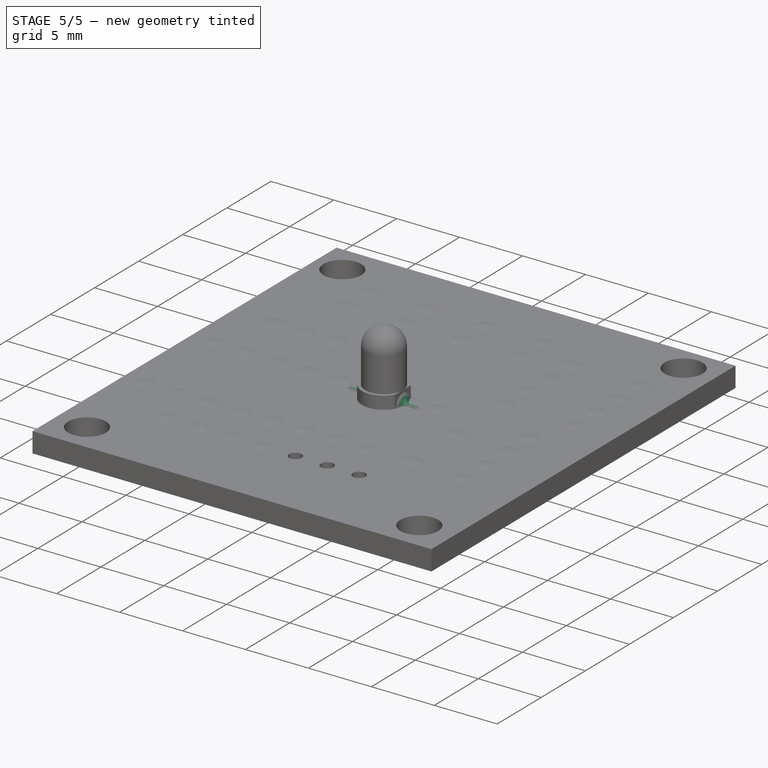
[diagram: stage 5 of 5 — iso view after this stage's code; geometry added in this stage tinted green]
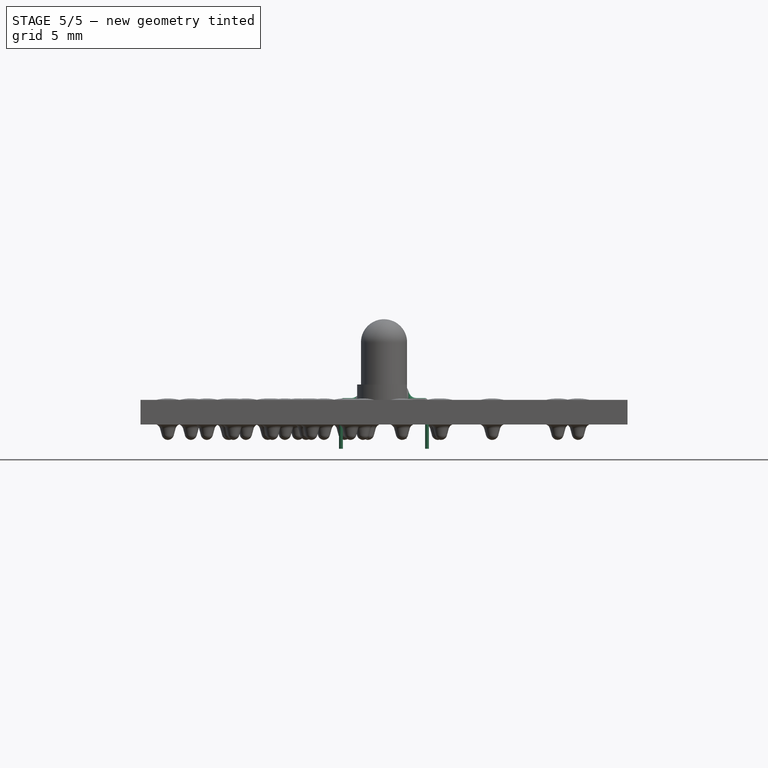
[diagram: stage 5 of 5 — front view after this stage's code; geometry added in this stage tinted green]
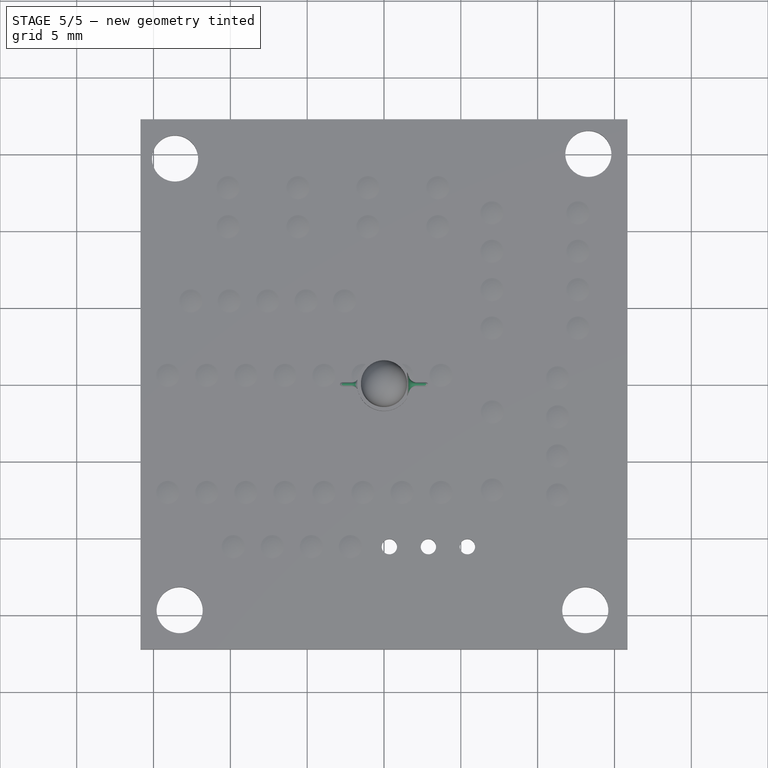
[diagram: stage 5 of 5 — top view after this stage's code; geometry added in this stage tinted green]
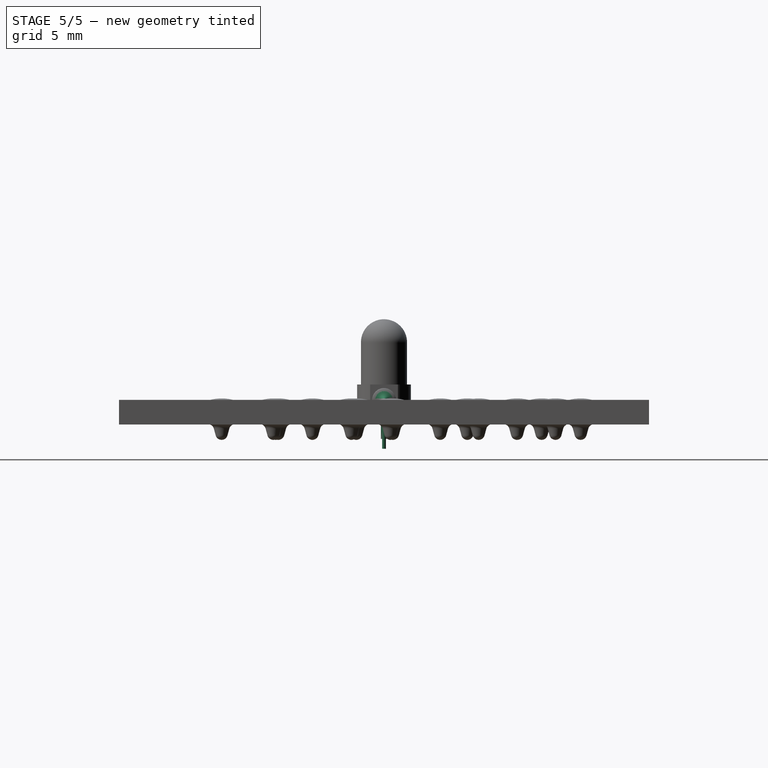
[diagram: stage 5 of 5 — right view after this stage's code; geometry added in this stage tinted green]
FEATURE [Sketcher::SketchObject] Sketch003  label="Sketch-flat"
  FullyConstrained = false
  MapMode = 5
  Placement = pos=(0,4e-16,1) rot=(0,0,1;3.14159rad)
  Support = -> [Revolution]
  sketch-geometry (2):
    g0: LineSegment StartX=-1.5 StartY=0.901388 StartZ=0 EndX=-1.5 EndY=-0.901388 EndZ=0
    g1: ArcOfCircle CenterX=0 CenterY=0 CenterZ=0 NormalX=0 NormalY=0 NormalZ=1 AngleXU=0 Radius=1.75 StartAngle=2.60049 EndAngle=3.68269
  constraints (6):
    c: Vertical(g0)
    c: Coincident(g1,g0)
    c: Coincident(g1,g0)
    c: Radius(g1) = 1.75
    c: DistanceX(g0) = -1.5
    c: Coincident(g1,g-1)
FEATURE [Sketcher::SketchObject] Sketch007  label="Sketch-wire-path"
  FullyConstrained = false
  MapMode = 5
  Placement = pos=(0,0,0) rot=(1,0,0;1.5708rad)
  Support = -> [XZ_Plane005]
  sketch-geometry (5):
    g0: LineSegment StartX=-2.62 StartY=0 StartZ=0 EndX=2.62 EndY=-1.4e-11 EndZ=0
    g1: ArcOfCircle CenterX=2.62 CenterY=-0.18 CenterZ=0 NormalX=0 NormalY=0 NormalZ=1 AngleXU=0 Radius=0.18 StartAngle=0 EndAngle=1.5708
    g2: LineSegment StartX=2.8 StartY=-0.18 StartZ=0 EndX=2.8 EndY=-3.18 EndZ=0
    g3: ArcOfCircle CenterX=-2.62 CenterY=-0.18 CenterZ=0 NormalX=0 NormalY=0 NormalZ=1 AngleXU=0 Radius=0.18 StartAngle=1.5708 EndAngle=3.14159
    g4: LineSegment StartX=-2.8 StartY=-0.18 StartZ=0 EndX=-2.8 EndY=-3.18 EndZ=0
  constraints (13):
    c: PointOnObject(g0,g-1)
    c: Tangent(g0,g1) = 1.5708
    c: Tangent(g1,g2) = 1.5708
    c: Vertical(g2)
    c: Radius(g1) = 0.18
    c: DistanceY(g2,g2) = 3
    c: DistanceX(g2) = 2.8
    c: Tangent(g3,g4) = -1.5708
    c: Vertical(g4)
    c: Radius(g3) = 0.18
    c: Symmetric(g0,g0,g-2)
    c: Equal(g4,g2)
    c: Tangent(g0,g3) = 1.5708
FEATURE [Sketcher::SketchObject] Sketch008
  FullyConstrained = false
  MapMode = 5
  Support = -> [XY_Plane005]
  sketch-geometry (31):
    g0: ArcOfCircle CenterX=-0.875 CenterY=0 CenterZ=0 NormalX=0 NormalY=0 NormalZ=1 AngleXU=0 Radius=0.85 StartAngle=1.07813 EndAngle=2.44891
    g1: ArcOfCircle CenterX=0 CenterY=1.62999 CenterZ=0 NormalX=0 NormalY=0 NormalZ=1 AngleXU=0 Radius=1 StartAngle=4.21973 EndAngle=5.20505
    g2: ArcOfCircle CenterX=0.875 CenterY=0 CenterZ=0 NormalX=0 NormalY=0 NormalZ=1 AngleXU=0 Radius=0.85 StartAngle=0.692681 EndAngle=2.06346
    g3: LineSegment StartX=-0.875 StartY=0 StartZ=0 EndX=0.875 EndY=0 EndZ=0
    g4: LineSegment StartX=-1.52911 StartY=0.542812 StartZ=0 EndX=-1.72588 EndY=0.305699 EndZ=0
    g5: ArcOfCircle CenterX=-2.11064 CenterY=0.625 CenterZ=0 NormalX=0 NormalY=0 NormalZ=1 AngleXU=0 Radius=0.5 StartAngle=4.71239 EndAngle=5.5905
    g6: LineSegment StartX=-2.11064 StartY=0.125 StartZ=0 EndX=-2.25 EndY=0.125 EndZ=0
    g7: LineSegment StartX=-2.25 StartY=0.125 StartZ=0 EndX=-2.25 EndY=0 EndZ=0
    g8: LineSegment StartX=0 StartY=1.62999 StartZ=0 EndX=0 EndY=0 EndZ=0
    g9: LineSegment StartX=2.25 StartY=0.125 StartZ=0 EndX=2.25 EndY=0 EndZ=0
    g10: LineSegment StartX=2.11064 StartY=0.125 StartZ=0 EndX=2.25 EndY=0.125 EndZ=0
    g11: ArcOfCircle CenterX=2.11064 CenterY=0.625 CenterZ=0 NormalX=0 NormalY=0 NormalZ=1 AngleXU=0 Radius=0.5 StartAngle=3.83427 EndAngle=4.71239
    g12: LineSegment StartX=1.52911 StartY=0.542812 StartZ=0 EndX=1.72588 EndY=0.305699 EndZ=0
    g13: LineSegment StartX=-2.25 StartY=0 StartZ=0 EndX=2.25 EndY=0 EndZ=0
    g14: ArcOfCircle CenterX=-2.11064 CenterY=0.632368 CenterZ=0 NormalX=0 NormalY=0 NormalZ=1 AngleXU=0 Radius=0.507368 StartAngle=4.71239 EndAngle=5.9338
    g15: LineSegment StartX=-1.63393 StartY=0.458686 StartZ=0 EndX=-1.55127 EndY=0.68558 EndZ=0
    g16: ArcOfCircle CenterX=-1.31637 CenterY=0.6 CenterZ=0 NormalX=0 NormalY=0 NormalZ=1 AngleXU=0 Radius=0.25 StartAngle=1.5708 EndAngle=2.79221
    g17: LineSegment StartX=-1.31637 StartY=0.85 StartZ=0 EndX=-1.01637 EndY=0.85 EndZ=0
    g18: ArcOfCircle CenterX=-1.01637 CenterY=0.6 CenterZ=0 NormalX=0 NormalY=0 NormalZ=1 AngleXU=0 Radius=0.25 StartAngle=0.643501 EndAngle=1.5708
    g19: ArcOfCircle CenterX=-0.616369 CenterY=0.9 CenterZ=0 NormalX=0 NormalY=0 NormalZ=1 AngleXU=0 Radius=0.25 StartAngle=3.78509 EndAngle=4.71239
    g20: LineSegment StartX=-0.616369 StartY=0.65 StartZ=0 EndX=0.616369 EndY=0.65 EndZ=0
    g21: ArcOfCircle CenterX=2.11064 CenterY=0.632368 CenterZ=0 NormalX=0 NormalY=0 NormalZ=1 AngleXU=0 Radius=0.507368 StartAngle=3.49098 EndAngle=4.71239
    g22: LineSegment StartX=1.63393 StartY=0.458686 StartZ=0 EndX=1.55127 EndY=0.68558 EndZ=0
    g23: ArcOfCircle CenterX=1.31637 CenterY=0.6 CenterZ=0 NormalX=0 NormalY=0 NormalZ=1 AngleXU=0 Radius=0.25 StartAngle=0.349385 EndAngle=1.5708
    g24: LineSegment StartX=1.31637 StartY=0.85 StartZ=0 EndX=1.01637 EndY=0.85 EndZ=0
    g25: ArcOfCircle CenterX=1.01637 CenterY=0.6 CenterZ=0 NormalX=0 NormalY=0 NormalZ=1 AngleXU=0 Radius=0.25 StartAngle=1.5708 EndAngle=2.49809
    g26: ArcOfCircle CenterX=0.616369 CenterY=0.9 CenterZ=0 NormalX=0 NormalY=0 NormalZ=1 AngleXU=0 Radius=0.25 StartAngle=4.71239 EndAngle=5.63968
    g27: LineSegment StartX=-0.616369 StartY=0.65 StartZ=0 EndX=-0.305456 EndY=0.65 EndZ=0
    g28: LineSegment StartX=0.316369 StartY=0.65 StartZ=0 EndX=0.616369 EndY=0.65 EndZ=0
    g29: LineSegment StartX=-0.305456 StartY=0.65 StartZ=0 EndX=0.00545644 EndY=0.65 EndZ=0
    g30: LineSegment StartX=0.00545644 StartY=0.65 StartZ=0 EndX=0.316369 EndY=0.65 EndZ=0
  constraints (70):
    c: Tangent(g1,g2) = 1.5708
    c: Tangent(g0,g1) = 1.5708
    c: Radius(g1) = 1
    c: Tangent(g4,g5) = 1.5708
    c: Tangent(g5,g6) = 1.5708
    c: Coincident(g6,g7)
    c: Horizontal(g6)
    c: Vertical(g7)
    c: Tangent(g4,g0)
    c: DistanceY(g7,g7) = 0.125
    c: Coincident(g0,g4)
    c: Radius(g0) = 0.85
    c: Coincident(g8,g1)
    c: Vertical(g8)
    c: Tangent(g12,g11) = -1.5708
    c: Tangent(g11,g10) = -1.5708
    c: Coincident(g10,g9)
    c: Vertical(g9)
    c: Coincident(g3,g0)
    c: Coincident(g3,g2)
    c: DistanceX(g3,g3) = 1.75
    c: Coincident(g13,g7)
    c: Coincident(g13,g9)
    c: PointOnObject(g0,g13)
    c: Symmetric(g0,g2,g8)
    c: Symmetric(g4,g11,g8)
    c: Symmetric(g10,g5,g8)
    c: Symmetric(g7,g9,g8)
    c: DistanceX(g13,g13) = 4.5
    c: PointOnObject(g8,g13)
    c: Radius(g5) = 0.5
    c: Tangent(g2,g12) = 1.5708
    c: Coincident(g8,g-1)
    c: Tangent(g6,g14) = 1.5708
    c: Tangent(g14,g15) = -1.5708
    c: Tangent(g15,g16) = 1.5708
    c: Tangent(g16,g17) = 1.5708
    c: Tangent(g17,g18) = 1.5708
    c: Tangent(g18,g19) = 1.5708
    c: Tangent(g19,g20) = -1.5708
    c: DistanceY(g19) = 0.65
    c: DistanceY(g16) = 0.85
    c: Horizontal(g17)
    c: Equal(g16,g18)
    c: Equal(g18,g19)
    c: Radius(g16) = 0.25
    c: Tangent(g21,g22) = 1.5708
    c: Tangent(g22,g23) = -1.5708
    c: Tangent(g23,g24) = -1.5708
    c: Tangent(g24,g25) = -1.5708
    c: Tangent(g25,g26) = 1.5708
    c: Horizontal(g24)
    c: Equal(g23,g25)
    c: Equal(g25,g26)
    c: Tangent(g20,g26) = -1.5708
    c: Symmetric(g19,g20,g8)
    c: Tangent(g10,g21) = -1.5708
    c: DistanceX(g17,g17) = 0.3
    c: Symmetric(g17,g24,g8)
    c: Equal(g17,g24)
    c: Tangent(g19,g27) = -1.5708
    c: PointOnObject(g28,g20)
    c: Coincident(g28,g20)
    c: Equal(g28,g24)
    c: Coincident(g27,g29)
    c: PointOnObject(g29,g20)
    c: Coincident(g29,g30)
    c: Coincident(g30,g28)
    c: Equal(g27,g29)
    c: Equal(g29,g30)
FEATURE [PartDesign::Revolution] Revolution001  label="Revolution-R"
  AllowMultiFace = false
  Angle = 360
  Axis = (1,0,0)
  Base = (0,0,0)
  Profile = -> Sketch008
  ReferenceAxis = -> Sketch008 [H_Axis]
FEATURE [Sketcher::SketchObject] Sketch009  label="Sketch-wire-profile"
  FullyConstrained = false
  MapMode = 5
  Placement = pos=(2.25,0,0) rot=(0.57735,0.57735,0.57735;2.0944rad)
  Support = -> [Revolution001]
  sketch-geometry (1):
    g0: Circle CenterX=0 CenterY=0 CenterZ=0 NormalX=0 NormalY=0 NormalZ=1 AngleXU=0 Radius=0.125
  constraints (2):
    c: Coincident(g0,g-1)
    c: Radius(g0) = 0.125
FEATURE [PartDesign::AdditivePipe] AdditivePipe  label="AdditivePipe-wire"
  AllowMultiFace = false
  AuxilleryCurvelinear = true
  AuxillerySpineTangent = false
  BaseFeature = -> Revolution001
  Binormal = (0,0,0)
  Mode = 0
  Profile = -> Sketch009
  Spine = -> Sketch007
  SpineTangent = false
  Transformation = 0
  Transition = 0
FEATURE [Sketcher::SketchObject] Sketch004  label="Sketch-pads"
  FullyConstrained = false
  MapMode = 5
  Placement = pos=(0,0,0) rot=(1,0,0;3.14159rad)
  Support = -> [Pocket002005]
  sketch-geometry (8):
    g0: LineSegment StartX=1.07 StartY=0.2 StartZ=0 EndX=1.47 EndY=0.2 EndZ=0
    g1: LineSegment StartX=1.47 StartY=0.2 StartZ=0 EndX=1.47 EndY=-0.2 EndZ=0
    g2: LineSegment StartX=1.47 StartY=-0.2 StartZ=0 EndX=1.07 EndY=-0.2 EndZ=0
    g3: LineSegment StartX=1.07 StartY=-0.2 StartZ=0 EndX=1.07 EndY=0.2 EndZ=0
    g4: LineSegment StartX=-1.47 StartY=0.2 StartZ=0 EndX=-1.07 EndY=0.2 EndZ=0
    g5: LineSegment StartX=-1.07 StartY=0.2 StartZ=0 EndX=-1.07 EndY=-0.2 EndZ=0
    g6: LineSegment StartX=-1.07 StartY=-0.2 StartZ=0 EndX=-1.47 EndY=-0.2 EndZ=0
    g7: LineSegment StartX=-1.47 StartY=-0.2 StartZ=0 EndX=-1.47 EndY=0.2 EndZ=0
  constraints (21):
    c: Coincident(g0,g1)
    c: Coincident(g1,g2)
    c: Coincident(g2,g3)
    c: Coincident(g3,g0)
    c: Horizontal(g0)
    c: Horizontal(g2)
    c: Vertical(g1)
    c: Coincident(g4,g5)
    c: Coincident(g5,g6)
    c: Coincident(g6,g7)
    c: Coincident(g7,g4)
    c: Horizontal(g4)
    c: Vertical(g7)
    c: DistanceX(g4,g4) = 0.4
    c: Equal(g4,g0)
    c: Equal(g7,g3)
    c: Symmetric(g4,g5,g-1)
    c: Symmetric(g0,g2,g-1)
    c: DistanceX(g4,g0) = 2.54
    c: Symmetric(g5,g2,g-2)
    c: Equal(g7,g4)
FEATURE [PartDesign::Pad] Pad002  label="Pad-pads"
  AllowMultiFace = false
  BaseFeature = -> Pocket002005
  Direction = (1,1,1)
  Length = 2.54
  Length2 = 100
  Placement = pos=(0,0,0) rot=(1,0,0;1.5708rad)
  Profile = -> Sketch004
  Type = 0
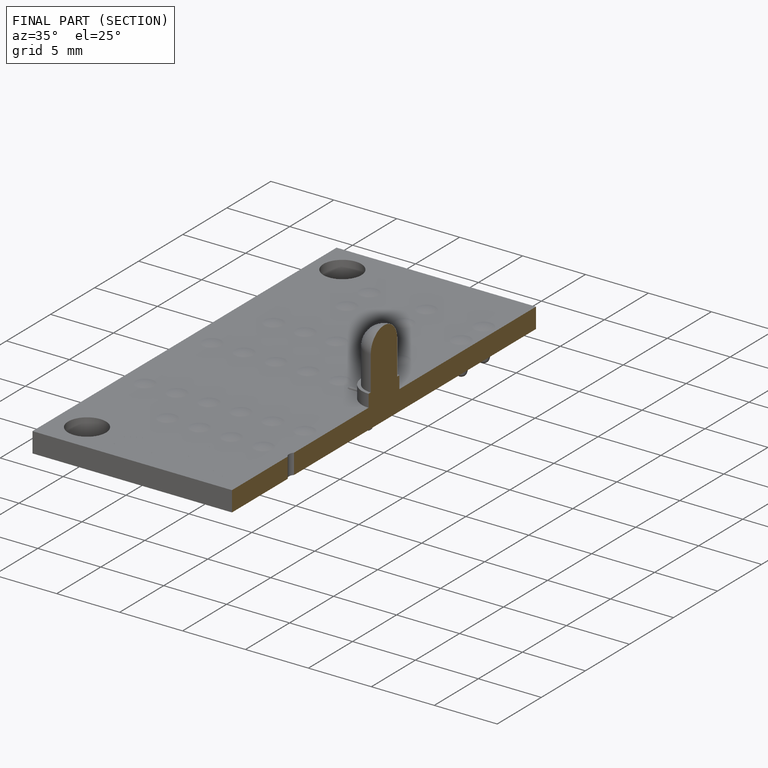
[diagram: finished part — half-section view (interior)]
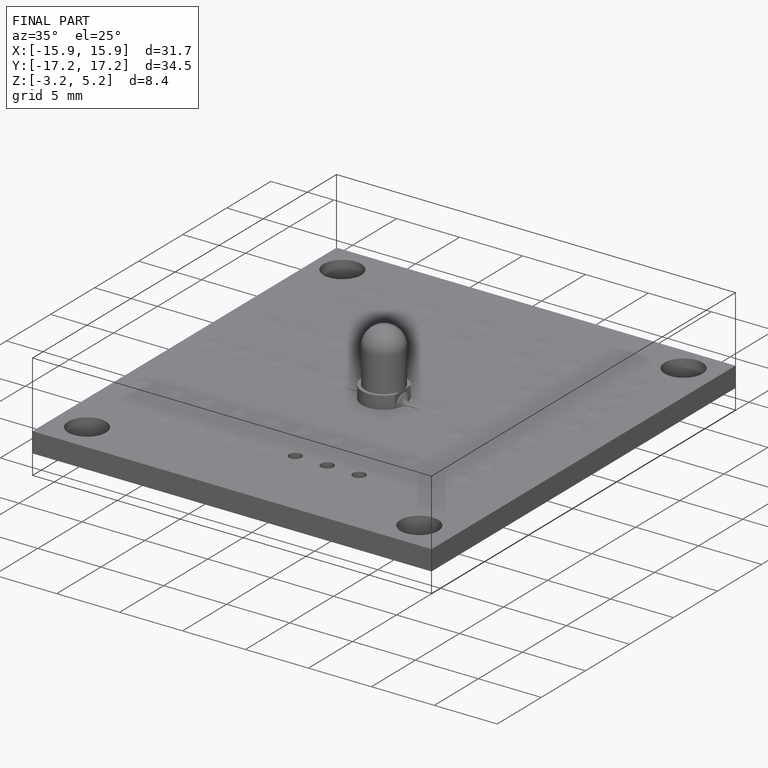
[diagram: finished part — iso view with bounding-box wireframe]
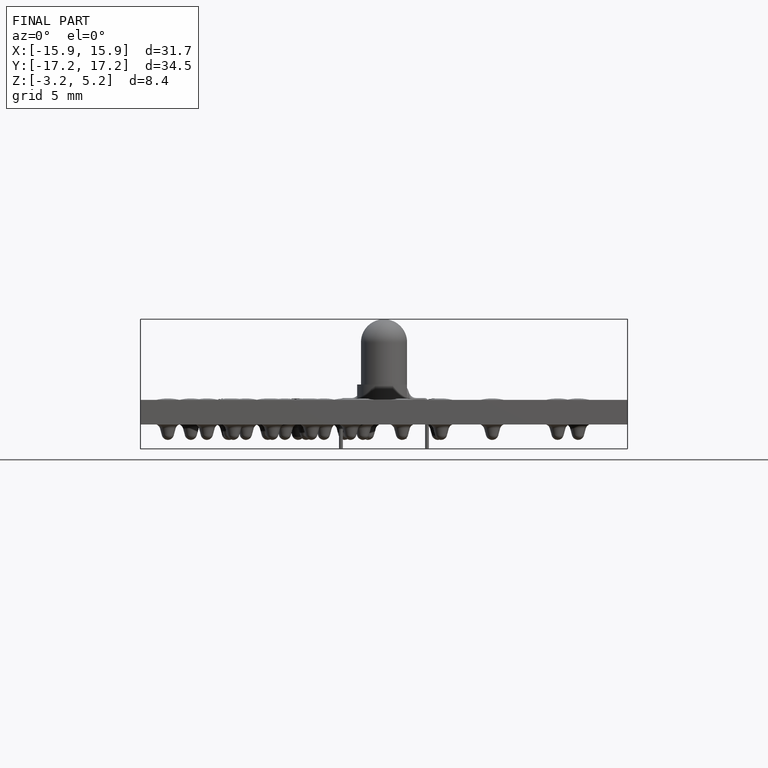
[diagram: finished part — front view with bounding-box wireframe]
